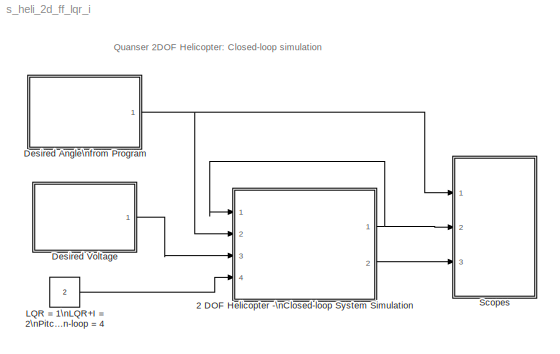
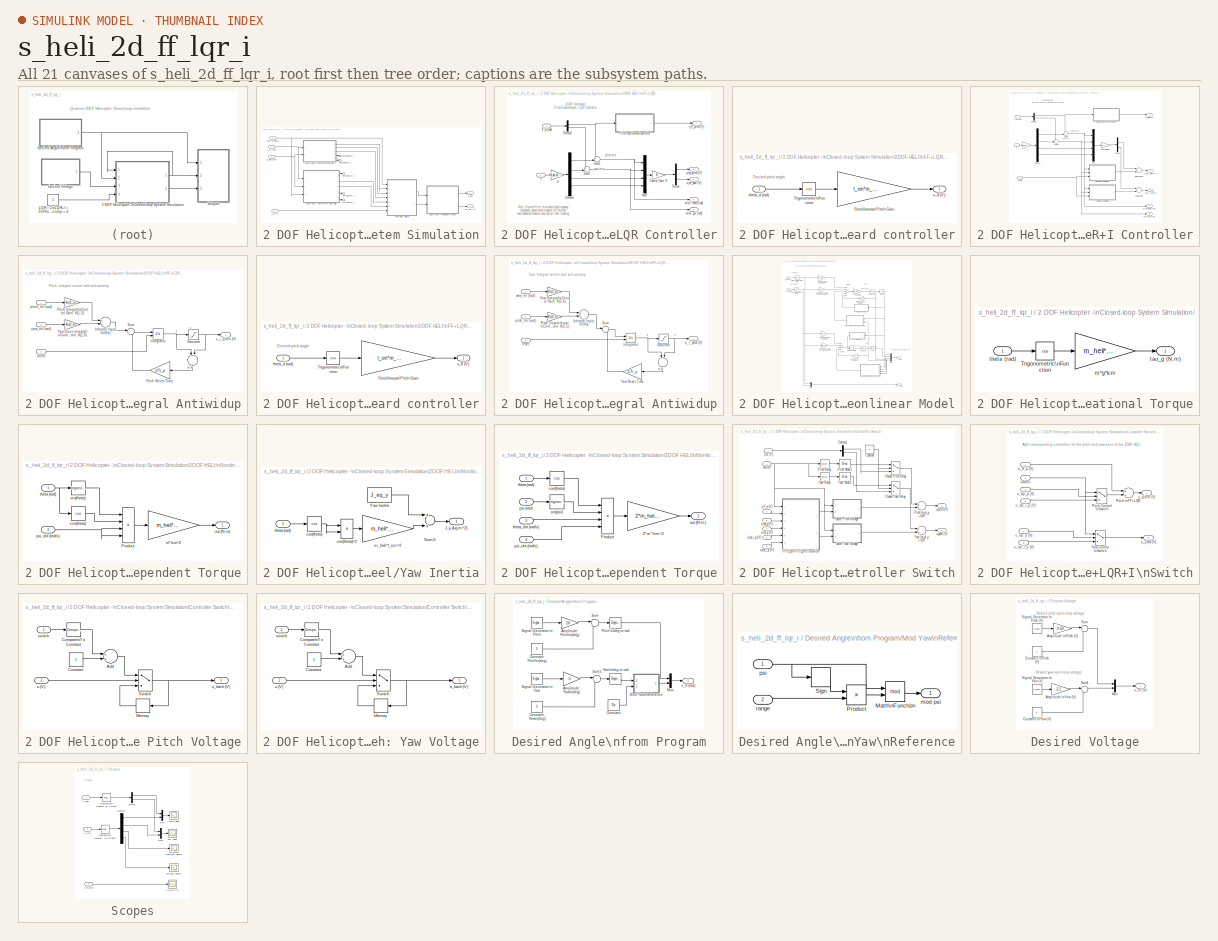
[diagram: thumbnail index - all 21 canvases of the model, root first then tree order]
MODEL s_heli_2d_ff_lqr_i
KIND model
BLOCK [SubSystem] 2 DOF Helicopter -\nClosed-loop System Simulation
  FunctionWithSeparateData = off
  MinAlgLoopOccurrences = off
  Ports = [4, 2]
  RTWSystemCode = Auto
BLOCK [SubSystem] 2 DOF Helicopter -\nClosed-loop System Simulation/2DOF HELI:\nFF+LQR Controller
  FunctionWithSeparateData = off
  MinAlgLoopOccurrences = off
  Ports = [2, 5]
  RTWSystemCode = Auto
BLOCK [Gain] 2 DOF Helicopter -\nClosed-loop System Simulation/2DOF HELI:\nFF+LQR Controller/-X
  Gain = -eye(4,4)
  Multiplication = Matrix(K*u)
  OutDataType = sfix(16)
  OutDataTypeMode = Inherit via internal rule
  OutScaling = 2^0
  ParameterDataType = sfix(16)
  ParameterDataTypeMode = Inherit via internal rule
  ParameterScaling = 2^0
  SaturateOnIntegerOverflow = off
BLOCK [Gain] 2 DOF Helicopter -\nClosed-loop System Simulation/2DOF HELI:\nFF+LQR Controller/Control Gain: K
  Gain = K
  Multiplication = Matrix(K*u)
  OutDataType = sfix(16)
  OutDataTypeMode = Inherit via internal rule
  OutScaling = 2^0
  ParameterDataType = sfix(16)
  ParameterDataTypeMode = Inherit via internal rule
  ParameterScaling = 2^0
  SaturateOnIntegerOverflow = off
BLOCK [Demux] 2 DOF Helicopter -\nClosed-loop System Simulation/2DOF HELI:\nFF+LQR Controller/Demux
  DisplayOption = bar
  Outputs = 2
  Ports = [1, 2]
BLOCK [Demux] 2 DOF Helicopter -\nClosed-loop System Simulation/2DOF HELI:\nFF+LQR Controller/Demux1
  DisplayOption = bar
  Ports = [1, 4]
BLOCK [Demux] 2 DOF Helicopter -\nClosed-loop System Simulation/2DOF HELI:\nFF+LQR Controller/Demux2
  DisplayOption = bar
  Outputs = 2
  Ports = [1, 2]
BLOCK [Mux] 2 DOF Helicopter -\nClosed-loop System Simulation/2DOF HELI:\nFF+LQR Controller/Mux
  DisplayOption = bar
  Ports = [4, 1]
BLOCK [SubSystem] 2 DOF Helicopter -\nClosed-loop System Simulation/2DOF HELI:\nFF+LQR Controller/Pitch feed-forward controller
  FunctionWithSeparateData = off
  MinAlgLoopOccurrences = off
  Ports = [1, 1]
  RTWSystemCode = Auto
BLOCK [Gain] 2 DOF Helicopter -\nClosed-loop System Simulation/2DOF HELI:\nFF+LQR Controller/Pitch feed-forward controller/Feed-forward Pitch Gain
  Gain = l_cm*m_heli*g / K_pp
  OutDataType = sfix(16)
  OutDataTypeMode = Inherit via internal rule
  OutScaling = 2^0
  ParameterDataType = sfix(16)
  ParameterDataTypeMode = Inherit via internal rule
  ParameterScaling = 2^0
  SaturateOnIntegerOverflow = off
BLOCK [Trigonometry] 2 DOF Helicopter -\nClosed-loop System Simulation/2DOF HELI:\nFF+LQR Controller/Pitch feed-forward controller/Trigonometric\nFunction
  Operator = cos
  OutputSignalType = real
  Ports = [1, 1]
BLOCK [Inport] 2 DOF Helicopter -\nClosed-loop System Simulation/2DOF HELI:\nFF+LQR Controller/Pitch feed-forward controller/theta_d (rad)
  IconDisplay = Port number
  OutDataType = sfix(16)
  OutScaling = 2^0
BLOCK [Outport] 2 DOF Helicopter -\nClosed-loop System Simulation/2DOF HELI:\nFF+LQR Controller/Pitch feed-forward controller/u_ff (V)
  IconDisplay = Port number
  OutDataType = sfix(16)
  OutScaling = 2^0
BLOCK [Sum] 2 DOF Helicopter -\nClosed-loop System Simulation/2DOF HELI:\nFF+LQR Controller/Sum1
  CollapseMode = All dimensions
  IconShape = round
  InputSameDT = off
  Inputs = ++|
  OutDataType = sfix(16)
  OutDataTypeMode = Inherit via internal rule
  OutScaling = 2^0
  Ports = [2, 1]
  SaturateOnIntegerOverflow = off
BLOCK [Sum] 2 DOF Helicopter -\nClosed-loop System Simulation/2DOF HELI:\nFF+LQR Controller/Sum2
  CollapseMode = All dimensions
  IconShape = round
  InputSameDT = off
  Inputs = ++|
  OutDataType = sfix(16)
  OutDataTypeMode = Inherit via internal rule
  OutScaling = 2^0
  Ports = [2, 1]
  SaturateOnIntegerOverflow = off
BLOCK [Inport] 2 DOF Helicopter -\nClosed-loop System Simulation/2DOF HELI:\nFF+LQR Controller/X
  IconDisplay = Port number
  OutDataType = sfix(16)
  OutScaling = 2^0
  Port = 2
BLOCK [Inport] 2 DOF Helicopter -\nClosed-loop System Simulation/2DOF HELI:\nFF+LQR Controller/X_d (rad)
  IconDisplay = Port number
  OutDataType = sfix(16)
  OutScaling = 2^0
BLOCK [Outport] 2 DOF Helicopter -\nClosed-loop System Simulation/2DOF HELI:\nFF+LQR Controller/error: psi (rad)
  IconDisplay = Port number
  OutDataType = sfix(16)
  OutScaling = 2^0
  Port = 5
BLOCK [Outport] 2 DOF Helicopter -\nClosed-loop System Simulation/2DOF HELI:\nFF+LQR Controller/error: theta (rad)
  IconDisplay = Port number
  OutDataType = sfix(16)
  OutScaling = 2^0
  Port = 4
BLOCK [Outport] 2 DOF Helicopter -\nClosed-loop System Simulation/2DOF HELI:\nFF+LQR Controller/u_ff_pitch (V)
  IconDisplay = Port number
  OutDataType = sfix(16)
  OutScaling = 2^0
BLOCK [Outport] 2 DOF Helicopter -\nClosed-loop System Simulation/2DOF HELI:\nFF+LQR Controller/u_lqr_pitch (V)
  IconDisplay = Port number
  OutDataType = sfix(16)
  OutScaling = 2^0
  Port = 2
BLOCK [Outport] 2 DOF Helicopter -\nClosed-loop System Simulation/2DOF HELI:\nFF+LQR Controller/u_lqr_yaw (V)
  IconDisplay = Port number
  OutDataType = sfix(16)
  OutScaling = 2^0
  Port = 3
BLOCK [SubSystem] 2 DOF Helicopter -\nClosed-loop System Simulation/2DOF HELI:\nFF+LQR+I Controller
  FunctionWithSeparateData = off
  MinAlgLoopOccurrences = off
  Ports = [3, 5]
  RTWSystemCode = Auto
BLOCK [Gain] 2 DOF Helicopter -\nClosed-loop System Simulation/2DOF HELI:\nFF+LQR+I Controller/-X
  Gain = -eye(4,4)
  Multiplication = Matrix(K*u)
  OutDataType = sfix(16)
  OutDataTypeMode = Inherit via internal rule
  OutScaling = 2^0
  ParameterDataType = sfix(16)
  ParameterDataTypeMode = Inherit via internal rule
  ParameterScaling = 2^0
  SaturateOnIntegerOverflow = off
BLOCK [Gain] 2 DOF Helicopter -\nClosed-loop System Simulation/2DOF HELI:\nFF+LQR+I Controller/Control Gain: K
  Gain = Ki(:,1:4)
  Multiplication = Matrix(K*u)
  OutDataType = sfix(16)
  OutDataTypeMode = Inherit via internal rule
  OutScaling = 2^0
  ParameterDataType = sfix(16)
  ParameterDataTypeMode = Inherit via internal rule
  ParameterScaling = 2^0
  SaturateOnIntegerOverflow = off
BLOCK [Demux] 2 DOF Helicopter -\nClosed-loop System Simulation/2DOF HELI:\nFF+LQR+I Controller/Demux
  DisplayOption = bar
  Outputs = 2
  Ports = [1, 2]
BLOCK [Demux] 2 DOF Helicopter -\nClosed-loop System Simulation/2DOF HELI:\nFF+LQR+I Controller/Demux1
  DisplayOption = bar
  Ports = [1, 4]
BLOCK [Demux] 2 DOF Helicopter -\nClosed-loop System Simulation/2DOF HELI:\nFF+LQR+I Controller/Demux2
  DisplayOption = bar
  Outputs = 2
  Ports = [1, 2]
BLOCK [Mux] 2 DOF Helicopter -\nClosed-loop System Simulation/2DOF HELI:\nFF+LQR+I Controller/Mux
  DisplayOption = bar
  Ports = [4, 1]
BLOCK [SubSystem] 2 DOF Helicopter -\nClosed-loop System Simulation/2DOF HELI:\nFF+LQR+I Controller/Pitch Integral Antiwidup
  FunctionWithSeparateData = off
  MinAlgLoopOccurrences = off
  Ports = [3, 1]
  RTWSystemCode = Auto
BLOCK [Sum] 2 DOF Helicopter -\nClosed-loop System Simulation/2DOF HELI:\nFF+LQR+I Controller/Pitch Integral Antiwidup/Integral Input \n(V//s)
  CollapseMode = All dimensions
  InputSameDT = off
  OutDataType = sfix(16)
  OutDataTypeMode = Inherit via internal rule
  OutScaling = 2^-10
  Ports = [2, 1]
  SaturateOnIntegerOverflow = off
BLOCK [Integrator] 2 DOF Helicopter -\nClosed-loop System Simulation/2DOF HELI:\nFF+LQR+I Controller/Pitch Integral Antiwidup/Integrator
  ExternalReset = rising
  Ports = [2, 1]
BLOCK [Gain] 2 DOF Helicopter -\nClosed-loop System Simulation/2DOF HELI:\nFF+LQR+I Controller/Pitch Integral Antiwidup/Pitch Integral\nControl Gain: K(1,5)
  Gain = Ki(1,5)
  Multiplication = Matrix(K*u)
  OutDataType = sfix(16)
  OutDataTypeMode = Inherit via internal rule
  OutScaling = 2^0
  ParameterDataType = sfix(16)
  ParameterDataTypeMode = Inherit via internal rule
  ParameterScaling = 2^0
  SaturateOnIntegerOverflow = off
BLOCK [Gain] 2 DOF Helicopter -\nClosed-loop System Simulation/2DOF HELI:\nFF+LQR+I Controller/Pitch Integral Antiwidup/Pitch Reset Time
  Gain = 1/Tr_p
  OutDataType = sfix(16)
  OutDataTypeMode = Inherit via internal rule
  OutScaling = 2^0
  ParameterDataType = sfix(16)
  ParameterDataTypeMode = Inherit via internal rule
  ParameterScaling = 2^0
  SaturateOnIntegerOverflow = off
BLOCK [Saturate] 2 DOF Helicopter -\nClosed-loop System Simulation/2DOF HELI:\nFF+LQR+I Controller/Pitch Integral Antiwidup/Saturate
  LowerLimit = -SAT_INT_ERR_PITCH
  UpperLimit = SAT_INT_ERR_PITCH
BLOCK [Sum] 2 DOF Helicopter -\nClosed-loop System Simulation/2DOF HELI:\nFF+LQR+I Controller/Pitch Integral Antiwidup/Sum
  CollapseMode = All dimensions
  IconShape = round
  InputSameDT = off
  Inputs = |++
  OutDataType = sfix(16)
  OutDataTypeMode = Inherit via internal rule
  OutScaling = 2^0
  Ports = [2, 1]
  SaturateOnIntegerOverflow = off
BLOCK [Gain] 2 DOF Helicopter -\nClosed-loop System Simulation/2DOF HELI:\nFF+LQR+I Controller/Pitch Integral Antiwidup/Yaw Cross-Integral\nControl Gain: K(1,6)
  Gain = Ki(1,6)
  Multiplication = Matrix(K*u)
  OutDataType = sfix(16)
  OutDataTypeMode = Inherit via internal rule
  OutScaling = 2^0
  ParameterDataType = sfix(16)
  ParameterDataTypeMode = Inherit via internal rule
  ParameterScaling = 2^0
  SaturateOnIntegerOverflow = off
BLOCK [Inport] 2 DOF Helicopter -\nClosed-loop System Simulation/2DOF HELI:\nFF+LQR+I Controller/Pitch Integral Antiwidup/pitch_err (rad)
  IconDisplay = Port number
  OutDataType = sfix(16)
  OutScaling = 2^0
BLOCK [Inport] 2 DOF Helicopter -\nClosed-loop System Simulation/2DOF HELI:\nFF+LQR+I Controller/Pitch Integral Antiwidup/reset
  IconDisplay = Port number
  OutDataType = sfix(16)
  OutScaling = 2^0
  Port = 3
BLOCK [Sum] 2 DOF Helicopter -\nClosed-loop System Simulation/2DOF HELI:\nFF+LQR+I Controller/Pitch Integral Antiwidup/u-v
  CollapseMode = All dimensions
  InputSameDT = off
  Inputs = -+
  OutDataType = sfix(16)
  OutDataTypeMode = Inherit via internal rule
  OutScaling = 2^-10
  Ports = [2, 1]
  SaturateOnIntegerOverflow = off
BLOCK [Outport] 2 DOF Helicopter -\nClosed-loop System Simulation/2DOF HELI:\nFF+LQR+I Controller/Pitch Integral Antiwidup/u_i_pitch (V)
  IconDisplay = Port number
  OutDataType = sfix(16)
  OutScaling = 2^0
BLOCK [Inport] 2 DOF Helicopter -\nClosed-loop System Simulation/2DOF HELI:\nFF+LQR+I Controller/Pitch Integral Antiwidup/yaw_err (rad)
  IconDisplay = Port number
  OutDataType = sfix(16)
  OutScaling = 2^0
  Port = 2
BLOCK [SubSystem] 2 DOF Helicopter -\nClosed-loop System Simulation/2DOF HELI:\nFF+LQR+I Controller/Pitch feed-forward controller
  FunctionWithSeparateData = off
  MinAlgLoopOccurrences = off
  Ports = [1, 1]
  RTWSystemCode = Auto
BLOCK [Gain] 2 DOF Helicopter -\nClosed-loop System Simulation/2DOF HELI:\nFF+LQR+I Controller/Pitch feed-forward controller/Feed-forward Pitch Gain
  Gain = l_cm*m_heli*g / K_pp
  OutDataType = sfix(16)
  OutDataTypeMode = Inherit via internal rule
  OutScaling = 2^0
  ParameterDataType = sfix(16)
  ParameterDataTypeMode = Inherit via internal rule
  ParameterScaling = 2^0
  SaturateOnIntegerOverflow = off
BLOCK [Trigonometry] 2 DOF Helicopter -\nClosed-loop System Simulation/2DOF HELI:\nFF+LQR+I Controller/Pitch feed-forward controller/Trigonometric\nFunction
  Operator = cos
  OutputSignalType = real
  Ports = [1, 1]
BLOCK [Inport] 2 DOF Helicopter -\nClosed-loop System Simulation/2DOF HELI:\nFF+LQR+I Controller/Pitch feed-forward controller/theta_d (rad)
  IconDisplay = Port number
  OutDataType = sfix(16)
  OutScaling = 2^0
BLOCK [Outport] 2 DOF Helicopter -\nClosed-loop System Simulation/2DOF HELI:\nFF+LQR+I Controller/Pitch feed-forward controller/u_ff (V)
  IconDisplay = Port number
  OutDataType = sfix(16)
  OutScaling = 2^0
BLOCK [Sum] 2 DOF Helicopter -\nClosed-loop System Simulation/2DOF HELI:\nFF+LQR+I Controller/Pitch:\nLQR+I
  CollapseMode = All dimensions
  InputSameDT = off
  OutDataType = sfix(16)
  OutDataTypeMode = Inherit via internal rule
  OutScaling = 2^-10
  Ports = [2, 1]
  SaturateOnIntegerOverflow = off
BLOCK [Sum] 2 DOF Helicopter -\nClosed-loop System Simulation/2DOF HELI:\nFF+LQR+I Controller/Sum1
  CollapseMode = All dimensions
  IconShape = round
  InputSameDT = off
  Inputs = ++|
  OutDataType = sfix(16)
  OutDataTypeMode = Inherit via internal rule
  OutScaling = 2^0
  Ports = [2, 1]
  SaturateOnIntegerOverflow = off
BLOCK [Sum] 2 DOF Helicopter -\nClosed-loop System Simulation/2DOF HELI:\nFF+LQR+I Controller/Sum2
  CollapseMode = All dimensions
  IconShape = round
  InputSameDT = off
  Inputs = ++|
  OutDataType = sfix(16)
  OutDataTypeMode = Inherit via internal rule
  OutScaling = 2^0
  Ports = [2, 1]
  SaturateOnIntegerOverflow = off
BLOCK [Inport] 2 DOF Helicopter -\nClosed-loop System Simulation/2DOF HELI:\nFF+LQR+I Controller/X
  IconDisplay = Port number
  OutDataType = sfix(16)
  OutScaling = 2^0
  Port = 2
BLOCK [Inport] 2 DOF Helicopter -\nClosed-loop System Simulation/2DOF HELI:\nFF+LQR+I Controller/X_d (rad)
  IconDisplay = Port number
  OutDataType = sfix(16)
  OutScaling = 2^0
BLOCK [SubSystem] 2 DOF Helicopter -\nClosed-loop System Simulation/2DOF HELI:\nFF+LQR+I Controller/Yaw Integral Antiwidup
  FunctionWithSeparateData = off
  MinAlgLoopOccurrences = off
  Ports = [3, 1]
  RTWSystemCode = Auto
BLOCK [Sum] 2 DOF Helicopter -\nClosed-loop System Simulation/2DOF HELI:\nFF+LQR+I Controller/Yaw Integral Antiwidup/Integral Input \n(V//s)
  CollapseMode = All dimensions
  InputSameDT = off
  OutDataType = sfix(16)
  OutDataTypeMode = Inherit via internal rule
  OutScaling = 2^-10
  Ports = [2, 1]
  SaturateOnIntegerOverflow = off
BLOCK [Integrator] 2 DOF Helicopter -\nClosed-loop System Simulation/2DOF HELI:\nFF+LQR+I Controller/Yaw Integral Antiwidup/Integrator
  ExternalReset = rising
  Ports = [2, 1]
BLOCK [Gain] 2 DOF Helicopter -\nClosed-loop System Simulation/2DOF HELI:\nFF+LQR+I Controller/Yaw Integral Antiwidup/Pitch Cross-Integral\nControl Gain: K(2,5)
  Gain = Ki(2,5)
  Multiplication = Matrix(K*u)
  OutDataType = sfix(16)
  OutDataTypeMode = Inherit via internal rule
  OutScaling = 2^0
  ParameterDataType = sfix(16)
  ParameterDataTypeMode = Inherit via internal rule
  ParameterScaling = 2^0
  SaturateOnIntegerOverflow = off
BLOCK [Saturate] 2 DOF Helicopter -\nClosed-loop System Simulation/2DOF HELI:\nFF+LQR+I Controller/Yaw Integral Antiwidup/Saturate
  LowerLimit = -SAT_INT_ERR_YAW
  UpperLimit = SAT_INT_ERR_YAW
BLOCK [Sum] 2 DOF Helicopter -\nClosed-loop System Simulation/2DOF HELI:\nFF+LQR+I Controller/Yaw Integral Antiwidup/Sum
  CollapseMode = All dimensions
  IconShape = round
  InputSameDT = off
  Inputs = |++
  OutDataType = sfix(16)
  OutDataTypeMode = Inherit via internal rule
  OutScaling = 2^0
  Ports = [2, 1]
  SaturateOnIntegerOverflow = off
BLOCK [Gain] 2 DOF Helicopter -\nClosed-loop System Simulation/2DOF HELI:\nFF+LQR+I Controller/Yaw Integral Antiwidup/Yaw Integral\nControl Gain: K(2,6)
  Gain = Ki(2,6)
  Multiplication = Matrix(K*u)
  OutDataType = sfix(16)
  OutDataTypeMode = Inherit via internal rule
  OutScaling = 2^0
  ParameterDataType = sfix(16)
  ParameterDataTypeMode = Inherit via internal rule
  ParameterScaling = 2^0
  SaturateOnIntegerOverflow = off
BLOCK [Gain] 2 DOF Helicopter -\nClosed-loop System Simulation/2DOF HELI:\nFF+LQR+I Controller/Yaw Integral Antiwidup/Yaw Reset Time
  Gain = 1/Tr_y
  OutDataType = sfix(16)
  OutDataTypeMode = Inherit via internal rule
  OutScaling = 2^0
  ParameterDataType = sfix(16)
  ParameterDataTypeMode = Inherit via internal rule
  ParameterScaling = 2^0
  SaturateOnIntegerOverflow = off
BLOCK [Inport] 2 DOF Helicopter -\nClosed-loop System Simulation/2DOF HELI:\nFF+LQR+I Controller/Yaw Integral Antiwidup/pitch_err (rad)
  IconDisplay = Port number
  OutDataType = sfix(16)
  OutScaling = 2^0
BLOCK [Inport] 2 DOF Helicopter -\nClosed-loop System Simulation/2DOF HELI:\nFF+LQR+I Controller/Yaw Integral Antiwidup/reset
  IconDisplay = Port number
  OutDataType = sfix(16)
  OutScaling = 2^0
  Port = 3
BLOCK [Sum] 2 DOF Helicopter -\nClosed-loop System Simulation/2DOF HELI:\nFF+LQR+I Controller/Yaw Integral Antiwidup/u-v
  CollapseMode = All dimensions
  InputSameDT = off
  Inputs = -+
  OutDataType = sfix(16)
  OutDataTypeMode = Inherit via internal rule
  OutScaling = 2^-10
  Ports = [2, 1]
  SaturateOnIntegerOverflow = off
BLOCK [Outport] 2 DOF Helicopter -\nClosed-loop System Simulation/2DOF HELI:\nFF+LQR+I Controller/Yaw Integral Antiwidup/u_i_yaw (V)
  IconDisplay = Port number
  OutDataType = sfix(16)
  OutScaling = 2^0
BLOCK [Inport] 2 DOF Helicopter -\nClosed-loop System Simulation/2DOF HELI:\nFF+LQR+I Controller/Yaw Integral Antiwidup/yaw_err (rad)
  IconDisplay = Port number
  OutDataType = sfix(16)
  OutScaling = 2^0
  Port = 2
BLOCK [Sum] 2 DOF Helicopter -\nClosed-loop System Simulation/2DOF HELI:\nFF+LQR+I Controller/Yaw:\nLQR+I
  CollapseMode = All dimensions
  InputSameDT = off
  OutDataType = sfix(16)
  OutDataTypeMode = Inherit via internal rule
  OutScaling = 2^-10
  Ports = [2, 1]
  SaturateOnIntegerOverflow = off
BLOCK [Outport] 2 DOF Helicopter -\nClosed-loop System Simulation/2DOF HELI:\nFF+LQR+I Controller/error: psi (rad)
  IconDisplay = Port number
  OutDataType = sfix(16)
  OutScaling = 2^0
  Port = 5
BLOCK [Outport] 2 DOF Helicopter -\nClosed-loop System Simulation/2DOF HELI:\nFF+LQR+I Controller/error: theta (rad)
  IconDisplay = Port number
  OutDataType = sfix(16)
  OutScaling = 2^0
  Port = 4
BLOCK [Inport] 2 DOF Helicopter -\nClosed-loop System Simulation/2DOF HELI:\nFF+LQR+I Controller/reset int
  IconDisplay = Port number
  OutDataType = sfix(16)
  OutScaling = 2^0
  Port = 3
BLOCK [Outport] 2 DOF Helicopter -\nClosed-loop System Simulation/2DOF HELI:\nFF+LQR+I Controller/u_ff_pitch (V)
  IconDisplay = Port number
  OutDataType = sfix(16)
  OutScaling = 2^0
BLOCK [Outport] 2 DOF Helicopter -\nClosed-loop System Simulation/2DOF HELI:\nFF+LQR+I Controller/u_lqr_i_pitch (V)
  IconDisplay = Port number
  OutDataType = sfix(16)
  OutScaling = 2^0
  Port = 2
BLOCK [Outport] 2 DOF Helicopter -\nClosed-loop System Simulation/2DOF HELI:\nFF+LQR+I Controller/u_lqr_i_yaw (V)
  IconDisplay = Port number
  OutDataType = sfix(16)
  OutScaling = 2^0
  Port = 3
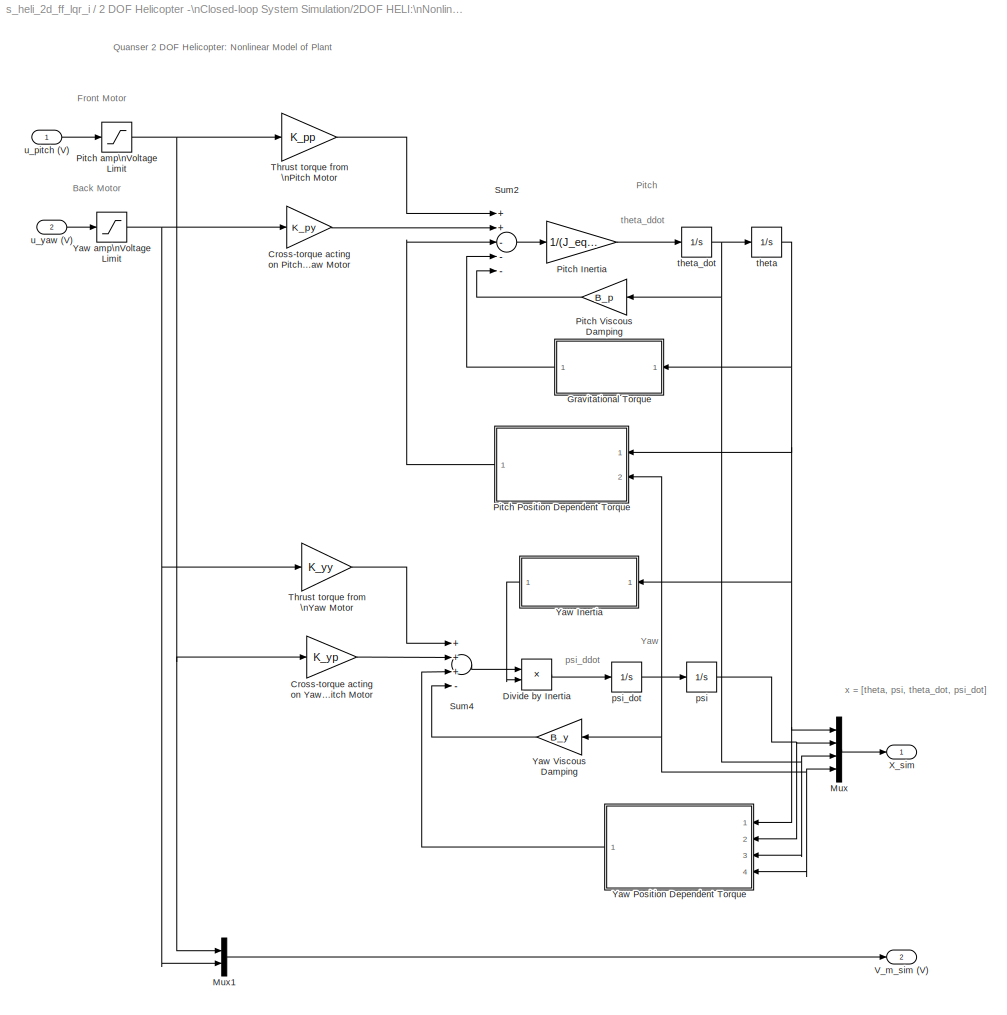
BLOCK [SubSystem] 2 DOF Helicopter -\nClosed-loop System Simulation/2DOF HELI:\nNonlinear Model
  FunctionWithSeparateData = off
  MinAlgLoopOccurrences = off
  Ports = [2, 2]
  RTWSystemCode = Auto
BLOCK [Gain] 2 DOF Helicopter -\nClosed-loop System Simulation/2DOF HELI:\nNonlinear Model/Cross-torque acting on Pitch \nfrom Yaw Motor
  Gain = K_py
  OutDataType = sfix(16)
  OutDataTypeMode = Inherit via internal rule
  OutScaling = 2^0
  ParameterDataType = sfix(16)
  ParameterDataTypeMode = Inherit via internal rule
  ParameterScaling = 2^0
  SaturateOnIntegerOverflow = off
BLOCK [Gain] 2 DOF Helicopter -\nClosed-loop System Simulation/2DOF HELI:\nNonlinear Model/Cross-torque acting on Yaw \nfrom Pitch Motor
  Gain = K_yp
  OutDataType = sfix(16)
  OutDataTypeMode = Inherit via internal rule
  OutScaling = 2^0
  ParameterDataType = sfix(16)
  ParameterDataTypeMode = Inherit via internal rule
  ParameterScaling = 2^0
  SaturateOnIntegerOverflow = off
BLOCK [Product] 2 DOF Helicopter -\nClosed-loop System Simulation/2DOF HELI:\nNonlinear Model/Divide by Inertia
  CollapseMode = All dimensions
  InputSameDT = off
  Inputs = */
  OutDataType = sfix(16)
  OutDataTypeMode = Inherit via internal rule
  OutScaling = 2^-10
  Ports = [2, 1]
  RndMeth = Floor
  SaturateOnIntegerOverflow = off
BLOCK [SubSystem] 2 DOF Helicopter -\nClosed-loop System Simulation/2DOF HELI:\nNonlinear Model/Gravitational Torque
  FunctionWithSeparateData = off
  MinAlgLoopOccurrences = off
  Ports = [1, 1]
  RTWSystemCode = Auto
BLOCK [Trigonometry] 2 DOF Helicopter -\nClosed-loop System Simulation/2DOF HELI:\nNonlinear Model/Gravitational Torque/Trigonometric\nFunction
  Operator = cos
  OutputSignalType = real
  Ports = [1, 1]
BLOCK [Gain] 2 DOF Helicopter -\nClosed-loop System Simulation/2DOF HELI:\nNonlinear Model/Gravitational Torque/m*g*lcm
  Gain = m_heli*g*l_cm
  OutDataType = sfix(16)
  OutDataTypeMode = Inherit via internal rule
  OutScaling = 2^0
  ParameterDataType = sfix(16)
  ParameterDataTypeMode = Inherit via internal rule
  ParameterScaling = 2^0
  SaturateOnIntegerOverflow = off
BLOCK [Outport] 2 DOF Helicopter -\nClosed-loop System Simulation/2DOF HELI:\nNonlinear Model/Gravitational Torque/tau_g (N.m)
  IconDisplay = Port number
  OutDataType = sfix(16)
  OutScaling = 2^0
BLOCK [Inport] 2 DOF Helicopter -\nClosed-loop System Simulation/2DOF HELI:\nNonlinear Model/Gravitational Torque/theta (rad)
  IconDisplay = Port number
  OutDataType = sfix(16)
  OutScaling = 2^0
BLOCK [Mux] 2 DOF Helicopter -\nClosed-loop System Simulation/2DOF HELI:\nNonlinear Model/Mux
  DisplayOption = bar
  Ports = [4, 1]
BLOCK [Mux] 2 DOF Helicopter -\nClosed-loop System Simulation/2DOF HELI:\nNonlinear Model/Mux1
  DisplayOption = bar
  Inputs = 2
  Ports = [2, 1]
BLOCK [Gain] 2 DOF Helicopter -\nClosed-loop System Simulation/2DOF HELI:\nNonlinear Model/Pitch Inertia
  Gain = 1/(J_eq_p+m_heli*l_cm^2)
  OutDataType = sfix(16)
  OutDataTypeMode = Inherit via internal rule
  OutScaling = 2^0
  ParameterDataType = sfix(16)
  ParameterDataTypeMode = Inherit via internal rule
  ParameterScaling = 2^0
  SaturateOnIntegerOverflow = off
BLOCK [SubSystem] 2 DOF Helicopter -\nClosed-loop System Simulation/2DOF HELI:\nNonlinear Model/Pitch Position Dependent Torque
  FunctionWithSeparateData = off
  MinAlgLoopOccurrences = off
  Ports = [2, 1]
  RTWSystemCode = Auto
BLOCK [Product] 2 DOF Helicopter -\nClosed-loop System Simulation/2DOF HELI:\nNonlinear Model/Pitch Position Dependent Torque/Product
  CollapseMode = All dimensions
  InputSameDT = off
  Inputs = 4
  OutDataType = sfix(16)
  OutDataTypeMode = Inherit via internal rule
  OutScaling = 2^0
  Ports = [4, 1]
  SaturateOnIntegerOverflow = off
BLOCK [Trigonometry] 2 DOF Helicopter -\nClosed-loop System Simulation/2DOF HELI:\nNonlinear Model/Pitch Position Dependent Torque/cos(theta)
  Operator = cos
  OutputSignalType = real
  Ports = [1, 1]
BLOCK [Gain] 2 DOF Helicopter -\nClosed-loop System Simulation/2DOF HELI:\nNonlinear Model/Pitch Position Dependent Torque/m*lcm^2
  Gain = m_heli*l_cm^2
  OutDataType = sfix(16)
  OutDataTypeMode = Inherit via internal rule
  OutScaling = 2^0
  ParameterDataType = sfix(16)
  ParameterDataTypeMode = Inherit via internal rule
  ParameterScaling = 2^0
  SaturateOnIntegerOverflow = off
BLOCK [Outport] 2 DOF Helicopter -\nClosed-loop System Simulation/2DOF HELI:\nNonlinear Model/Pitch Position Dependent Torque/out (N.m)
  IconDisplay = Port number
  OutDataType = sfix(16)
  OutScaling = 2^0
BLOCK [Inport] 2 DOF Helicopter -\nClosed-loop System Simulation/2DOF HELI:\nNonlinear Model/Pitch Position Dependent Torque/psi_dot (rad//s)
  IconDisplay = Port number
  OutDataType = sfix(16)
  OutScaling = 2^0
  Port = 2
BLOCK [Trigonometry] 2 DOF Helicopter -\nClosed-loop System Simulation/2DOF HELI:\nNonlinear Model/Pitch Position Dependent Torque/sin(theta)
  OutputSignalType = real
  Ports = [1, 1]
BLOCK [Inport] 2 DOF Helicopter -\nClosed-loop System Simulation/2DOF HELI:\nNonlinear Model/Pitch Position Dependent Torque/theta (rad)
  IconDisplay = Port number
  OutDataType = sfix(16)
  OutScaling = 2^0
BLOCK [Gain] 2 DOF Helicopter -\nClosed-loop System Simulation/2DOF HELI:\nNonlinear Model/Pitch Viscous Damping
  Gain = B_p
  OutDataType = sfix(16)
  OutDataTypeMode = Inherit via internal rule
  OutScaling = 2^0
  ParameterDataType = sfix(16)
  ParameterDataTypeMode = Inherit via internal rule
  ParameterScaling = 2^0
  SaturateOnIntegerOverflow = off
BLOCK [Saturate] 2 DOF Helicopter -\nClosed-loop System Simulation/2DOF HELI:\nNonlinear Model/Pitch amp\nVoltage Limit
  LowerLimit = - VMAX_AMP_P
  UpperLimit = VMAX_AMP_P
BLOCK [Sum] 2 DOF Helicopter -\nClosed-loop System Simulation/2DOF HELI:\nNonlinear Model/Sum2
  CollapseMode = All dimensions
  InputSameDT = off
  Inputs = ++---
  OutDataType = sfix(16)
  OutDataTypeMode = Inherit via internal rule
  OutScaling = 2^0
  Ports = [5, 1]
  SaturateOnIntegerOverflow = off
BLOCK [Sum] 2 DOF Helicopter -\nClosed-loop System Simulation/2DOF HELI:\nNonlinear Model/Sum4
  CollapseMode = All dimensions
  InputSameDT = off
  Inputs = +++-
  OutDataType = sfix(16)
  OutDataTypeMode = Inherit via internal rule
  OutScaling = 2^0
  Ports = [4, 1]
  SaturateOnIntegerOverflow = off
BLOCK [Gain] 2 DOF Helicopter -\nClosed-loop System Simulation/2DOF HELI:\nNonlinear Model/Thrust torque from \nPitch Motor
  Gain = K_pp
  OutDataType = sfix(16)
  OutDataTypeMode = Inherit via internal rule
  OutScaling = 2^0
  ParameterDataType = sfix(16)
  ParameterDataTypeMode = Inherit via internal rule
  ParameterScaling = 2^0
  SaturateOnIntegerOverflow = off
BLOCK [Gain] 2 DOF Helicopter -\nClosed-loop System Simulation/2DOF HELI:\nNonlinear Model/Thrust torque from \nYaw Motor
  Gain = K_yy
  OutDataType = sfix(16)
  OutDataTypeMode = Inherit via internal rule
  OutScaling = 2^0
  ParameterDataType = sfix(16)
  ParameterDataTypeMode = Inherit via internal rule
  ParameterScaling = 2^0
  SaturateOnIntegerOverflow = off
BLOCK [Outport] 2 DOF Helicopter -\nClosed-loop System Simulation/2DOF HELI:\nNonlinear Model/V_m_sim (V)
  IconDisplay = Port number
  OutDataType = sfix(16)
  OutScaling = 2^0
  Port = 2
BLOCK [Outport] 2 DOF Helicopter -\nClosed-loop System Simulation/2DOF HELI:\nNonlinear Model/X_sim
  IconDisplay = Port number
  OutDataType = sfix(16)
  OutScaling = 2^0
BLOCK [SubSystem] 2 DOF Helicopter -\nClosed-loop System Simulation/2DOF HELI:\nNonlinear Model/Yaw Inertia
  FunctionWithSeparateData = off
  MinAlgLoopOccurrences = off
  Ports = [1, 1]
  RTWSystemCode = Auto
BLOCK [Outport] 2 DOF Helicopter -\nClosed-loop System Simulation/2DOF HELI:\nNonlinear Model/Yaw Inertia/J_y (kg.m^2)
  IconDisplay = Port number
  OutDataType = sfix(16)
  OutScaling = 2^0
BLOCK [Sum] 2 DOF Helicopter -\nClosed-loop System Simulation/2DOF HELI:\nNonlinear Model/Yaw Inertia/Sum3
  CollapseMode = All dimensions
  InputSameDT = off
  OutDataType = sfix(16)
  OutDataTypeMode = Inherit via internal rule
  OutScaling = 2^0
  Ports = [2, 1]
  SaturateOnIntegerOverflow = off
BLOCK [Constant] 2 DOF Helicopter -\nClosed-loop System Simulation/2DOF HELI:\nNonlinear Model/Yaw Inertia/Yaw Inertia
  OutDataType = sfix(16)
  OutScaling = 2^0
  Value = J_eq_y
BLOCK [Trigonometry] 2 DOF Helicopter -\nClosed-loop System Simulation/2DOF HELI:\nNonlinear Model/Yaw Inertia/cos(theta)
  Operator = cos
  OutputSignalType = real
  Ports = [1, 1]
BLOCK [Product] 2 DOF Helicopter -\nClosed-loop System Simulation/2DOF HELI:\nNonlinear Model/Yaw Inertia/cos(theta)^2
  CollapseMode = All dimensions
  InputSameDT = off
  OutDataType = sfix(16)
  OutDataTypeMode = Inherit via internal rule
  OutScaling = 2^0
  Ports = [2, 1]
  SaturateOnIntegerOverflow = off
BLOCK [Gain] 2 DOF Helicopter -\nClosed-loop System Simulation/2DOF HELI:\nNonlinear Model/Yaw Inertia/m_heli*l_cm^2
  Gain = m_heli*l_cm^2
  OutDataType = sfix(16)
  OutDataTypeMode = Inherit via internal rule
  OutScaling = 2^0
  ParameterDataType = sfix(16)
  ParameterDataTypeMode = Inherit via internal rule
  ParameterScaling = 2^0
  SaturateOnIntegerOverflow = off
BLOCK [Inport] 2 DOF Helicopter -\nClosed-loop System Simulation/2DOF HELI:\nNonlinear Model/Yaw Inertia/theta (rad)
  IconDisplay = Port number
  OutDataType = sfix(16)
  OutScaling = 2^0
BLOCK [SubSystem] 2 DOF Helicopter -\nClosed-loop System Simulation/2DOF HELI:\nNonlinear Model/Yaw Position Dependent Torque
  FunctionWithSeparateData = off
  MinAlgLoopOccurrences = off
  Ports = [4, 1]
  RTWSystemCode = Auto
BLOCK [Gain] 2 DOF Helicopter -\nClosed-loop System Simulation/2DOF HELI:\nNonlinear Model/Yaw Position Dependent Torque/2*m*lcm^2
  Gain = 2*m_heli*l_cm^2
  OutDataType = sfix(16)
  OutDataTypeMode = Inherit via internal rule
  OutScaling = 2^0
  ParameterDataType = sfix(16)
  ParameterDataTypeMode = Inherit via internal rule
  ParameterScaling = 2^0
  SaturateOnIntegerOverflow = off
BLOCK [Product] 2 DOF Helicopter -\nClosed-loop System Simulation/2DOF HELI:\nNonlinear Model/Yaw Position Dependent Torque/Product
  CollapseMode = All dimensions
  InputSameDT = off
  Inputs = 4
  OutDataType = sfix(16)
  OutDataTypeMode = Inherit via internal rule
  OutScaling = 2^0
  Ports = [4, 1]
  SaturateOnIntegerOverflow = off
BLOCK [Trigonometry] 2 DOF Helicopter -\nClosed-loop System Simulation/2DOF HELI:\nNonlinear Model/Yaw Position Dependent Torque/cos(theta)
  Operator = cos
  OutputSignalType = real
  Ports = [1, 1]
BLOCK [Outport] 2 DOF Helicopter -\nClosed-loop System Simulation/2DOF HELI:\nNonlinear Model/Yaw Position Dependent Torque/out (N.m)
  IconDisplay = Port number
  OutDataType = sfix(16)
  OutScaling = 2^0
BLOCK [Inport] 2 DOF Helicopter -\nClosed-loop System Simulation/2DOF HELI:\nNonlinear Model/Yaw Position Dependent Torque/psi (rad)
  IconDisplay = Port number
  OutDataType = sfix(16)
  OutScaling = 2^0
  Port = 2
BLOCK [Inport] 2 DOF Helicopter -\nClosed-loop System Simulation/2DOF HELI:\nNonlinear Model/Yaw Position Dependent Torque/psi_dot (rad//s)
  IconDisplay = Port number
  OutDataType = sfix(16)
  OutScaling = 2^0
  Port = 4
BLOCK [Trigonometry] 2 DOF Helicopter -\nClosed-loop System Simulation/2DOF HELI:\nNonlinear Model/Yaw Position Dependent Torque/sin(psi)
  OutputSignalType = real
  Ports = [1, 1]
BLOCK [Inport] 2 DOF Helicopter -\nClosed-loop System Simulation/2DOF HELI:\nNonlinear Model/Yaw Position Dependent Torque/theta (rad)
  IconDisplay = Port number
  OutDataType = sfix(16)
  OutScaling = 2^0
BLOCK [Inport] 2 DOF Helicopter -\nClosed-loop System Simulation/2DOF HELI:\nNonlinear Model/Yaw Position Dependent Torque/theta_dot (rad//s)
  IconDisplay = Port number
  OutDataType = sfix(16)
  OutScaling = 2^0
  Port = 3
BLOCK [Gain] 2 DOF Helicopter -\nClosed-loop System Simulation/2DOF HELI:\nNonlinear Model/Yaw Viscous Damping
  Gain = B_y
  OutDataType = sfix(16)
  OutDataTypeMode = Inherit via internal rule
  OutScaling = 2^0
  ParameterDataType = sfix(16)
  ParameterDataTypeMode = Inherit via internal rule
  ParameterScaling = 2^0
  SaturateOnIntegerOverflow = off
BLOCK [Saturate] 2 DOF Helicopter -\nClosed-loop System Simulation/2DOF HELI:\nNonlinear Model/Yaw amp\nVoltage Limit
  LowerLimit = - VMAX_AMP_Y
  UpperLimit = VMAX_AMP_Y
BLOCK [Integrator] 2 DOF Helicopter -\nClosed-loop System Simulation/2DOF HELI:\nNonlinear Model/psi
  Ports = [1, 1]
BLOCK [Integrator] 2 DOF Helicopter -\nClosed-loop System Simulation/2DOF HELI:\nNonlinear Model/psi_dot
  Ports = [1, 1]
BLOCK [Integrator] 2 DOF Helicopter -\nClosed-loop System Simulation/2DOF HELI:\nNonlinear Model/theta
  InitialCondition = theta_0
  LimitOutput = on
  LowerSaturationLimit = -40.5*pi/180
  Ports = [1, 1]
  UpperSaturationLimit = 40.5*pi/180
BLOCK [Integrator] 2 DOF Helicopter -\nClosed-loop System Simulation/2DOF HELI:\nNonlinear Model/theta_dot
  Ports = [1, 1]
BLOCK [Inport] 2 DOF Helicopter -\nClosed-loop System Simulation/2DOF HELI:\nNonlinear Model/u_pitch (V)
  IconDisplay = Port number
  OutDataType = sfix(16)
  OutScaling = 2^0
BLOCK [Inport] 2 DOF Helicopter -\nClosed-loop System Simulation/2DOF HELI:\nNonlinear Model/u_yaw (V)
  IconDisplay = Port number
  OutDataType = sfix(16)
  OutScaling = 2^0
  Port = 2
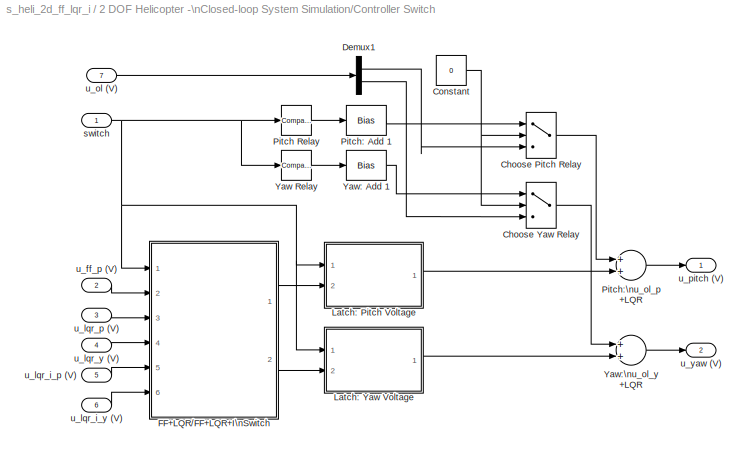
BLOCK [SubSystem] 2 DOF Helicopter -\nClosed-loop System Simulation/Controller Switch
  FunctionWithSeparateData = off
  MinAlgLoopOccurrences = off
  Ports = [7, 2]
  RTWSystemCode = Auto
BLOCK [MultiPortSwitch] 2 DOF Helicopter -\nClosed-loop System Simulation/Controller Switch/Choose Pitch Relay
  InputSameDT = off
  Inputs = 2
  Ports = [3, 1]
  SaturateOnIntegerOverflow = off
BLOCK [MultiPortSwitch] 2 DOF Helicopter -\nClosed-loop System Simulation/Controller Switch/Choose Yaw Relay
  InputSameDT = off
  Inputs = 2
  Ports = [3, 1]
  SaturateOnIntegerOverflow = off
BLOCK [Constant] 2 DOF Helicopter -\nClosed-loop System Simulation/Controller Switch/Constant
  OutDataType = sfix(16)
  OutScaling = 2^0
  Value = 0
BLOCK [Demux] 2 DOF Helicopter -\nClosed-loop System Simulation/Controller Switch/Demux1
  DisplayOption = bar
  Outputs = 2
  Ports = [1, 2]
BLOCK [SubSystem] 2 DOF Helicopter -\nClosed-loop System Simulation/Controller Switch/FF+LQR//FF+LQR+I\nSwitch
  FunctionWithSeparateData = off
  MinAlgLoopOccurrences = off
  Ports = [6, 2]
  RTWSystemCode = Auto
BLOCK [MultiPortSwitch] 2 DOF Helicopter -\nClosed-loop System Simulation/Controller Switch/FF+LQR//FF+LQR+I\nSwitch/Pitch Control \nSwitch
  InputSameDT = off
  Inputs = 2
  Ports = [3, 1]
  SaturateOnIntegerOverflow = off
BLOCK [Sum] 2 DOF Helicopter -\nClosed-loop System Simulation/Controller Switch/FF+LQR//FF+LQR+I\nSwitch/Pitch:\nFF+LQR
  CollapseMode = All dimensions
  InputSameDT = off
  OutDataType = sfix(16)
  OutDataTypeMode = Inherit via internal rule
  OutScaling = 2^-10
  Ports = [2, 1]
  SaturateOnIntegerOverflow = off
BLOCK [MultiPortSwitch] 2 DOF Helicopter -\nClosed-loop System Simulation/Controller Switch/FF+LQR//FF+LQR+I\nSwitch/Yaw Control \nSwitch
  InputSameDT = off
  Inputs = 2
  Ports = [3, 1]
  SaturateOnIntegerOverflow = off
BLOCK [Inport] 2 DOF Helicopter -\nClosed-loop System Simulation/Controller Switch/FF+LQR//FF+LQR+I\nSwitch/switch
  IconDisplay = Port number
  OutDataType = sfix(16)
  OutScaling = 2^0
BLOCK [Inport] 2 DOF Helicopter -\nClosed-loop System Simulation/Controller Switch/FF+LQR//FF+LQR+I\nSwitch/u_ff_p (V)
  IconDisplay = Port number
  OutDataType = sfix(16)
  OutScaling = 2^0
  Port = 2
BLOCK [Inport] 2 DOF Helicopter -\nClosed-loop System Simulation/Controller Switch/FF+LQR//FF+LQR+I\nSwitch/u_lqr_i_p (V)
  IconDisplay = Port number
  OutDataType = sfix(16)
  OutScaling = 2^0
  Port = 5
BLOCK [Inport] 2 DOF Helicopter -\nClosed-loop System Simulation/Controller Switch/FF+LQR//FF+LQR+I\nSwitch/u_lqr_i_y (V)
  IconDisplay = Port number
  OutDataType = sfix(16)
  OutScaling = 2^0
  Port = 6
BLOCK [Inport] 2 DOF Helicopter -\nClosed-loop System Simulation/Controller Switch/FF+LQR//FF+LQR+I\nSwitch/u_lqr_p (V)
  IconDisplay = Port number
  OutDataType = sfix(16)
  OutScaling = 2^0
  Port = 3
BLOCK [Inport] 2 DOF Helicopter -\nClosed-loop System Simulation/Controller Switch/FF+LQR//FF+LQR+I\nSwitch/u_lqr_y (V)
  IconDisplay = Port number
  OutDataType = sfix(16)
  OutScaling = 2^0
  Port = 4
BLOCK [Outport] 2 DOF Helicopter -\nClosed-loop System Simulation/Controller Switch/FF+LQR//FF+LQR+I\nSwitch/u_pitch (V)
  IconDisplay = Port number
  OutDataType = sfix(16)
  OutScaling = 2^0
BLOCK [Outport] 2 DOF Helicopter -\nClosed-loop System Simulation/Controller Switch/FF+LQR//FF+LQR+I\nSwitch/u_yaw (V)
  IconDisplay = Port number
  OutDataType = sfix(16)
  OutScaling = 2^0
  Port = 2
BLOCK [SubSystem] 2 DOF Helicopter -\nClosed-loop System Simulation/Controller Switch/Latch: Pitch Voltage
  FunctionWithSeparateData = off
  MinAlgLoopOccurrences = off
  Ports = [2, 1]
  RTWSystemCode = Auto
BLOCK [Sum] 2 DOF Helicopter -\nClosed-loop System Simulation/Controller Switch/Latch: Pitch Voltage/Add
  CollapseMode = All dimensions
  InputSameDT = off
  OutDataType = sfix(16)
  OutDataTypeMode = Inherit via internal rule
  OutScaling = 2^-10
  Ports = [2, 1]
  SaturateOnIntegerOverflow = off
BLOCK [Reference] 2 DOF Helicopter -\nClosed-loop System Simulation/Controller Switch/Latch: Pitch Voltage/Compare\nTo Constant  REF=simulink/Logic and Bit\nOperations/Compare\nTo Constant
  FunctionWithSeparateData = off
  LogicOutDataTypeMode = uint8
  Ports = [1, 1]
  RTWMemSecDataConstants = Inherit from model
  RTWMemSecDataInternal = Inherit from model
  RTWMemSecDataParameters = Inherit from model
  RTWMemSecFuncExecute = Inherit from model
  RTWMemSecFuncInitTerm = Inherit from model
  ShowPortLabels = FromPortIcon
  SourceBlock = simulink/Logic and Bit\nOperations/Compare\nTo Constant
  SourceType = Compare To Constant
  SystemSampleTime = -1
  ZeroCross = off
  const = 3.0
  relop = >=
BLOCK [Constant] 2 DOF Helicopter -\nClosed-loop System Simulation/Controller Switch/Latch: Pitch Voltage/Constant
  OutDataType = sfix(16)
  OutScaling = 2^0
BLOCK [Memory] 2 DOF Helicopter -\nClosed-loop System Simulation/Controller Switch/Latch: Pitch Voltage/Memory
BLOCK [MultiPortSwitch] 2 DOF Helicopter -\nClosed-loop System Simulation/Controller Switch/Latch: Pitch Voltage/Switch
  InputSameDT = off
  Inputs = 2
  Ports = [3, 1]
  SaturateOnIntegerOverflow = off
BLOCK [Inport] 2 DOF Helicopter -\nClosed-loop System Simulation/Controller Switch/Latch: Pitch Voltage/switch
  IconDisplay = Port number
  OutDataType = sfix(16)
  OutScaling = 2^0
BLOCK [Inport] 2 DOF Helicopter -\nClosed-loop System Simulation/Controller Switch/Latch: Pitch Voltage/u (V)
  IconDisplay = Port number
  OutDataType = sfix(16)
  OutScaling = 2^0
  Port = 2
BLOCK [Outport] 2 DOF Helicopter -\nClosed-loop System Simulation/Controller Switch/Latch: Pitch Voltage/u_latch (V)
  IconDisplay = Port number
  OutDataType = sfix(16)
  OutScaling = 2^0
BLOCK [SubSystem] 2 DOF Helicopter -\nClosed-loop System Simulation/Controller Switch/Latch: Yaw Voltage
  FunctionWithSeparateData = off
  MinAlgLoopOccurrences = off
  Ports = [2, 1]
  RTWSystemCode = Auto
BLOCK [Sum] 2 DOF Helicopter -\nClosed-loop System Simulation/Controller Switch/Latch: Yaw Voltage/Add
  CollapseMode = All dimensions
  InputSameDT = off
  OutDataType = sfix(16)
  OutDataTypeMode = Inherit via internal rule
  OutScaling = 2^-10
  Ports = [2, 1]
  SaturateOnIntegerOverflow = off
BLOCK [Reference] 2 DOF Helicopter -\nClosed-loop System Simulation/Controller Switch/Latch: Yaw Voltage/Compare\nTo Constant  REF=simulink/Logic and Bit\nOperations/Compare\nTo Constant
  FunctionWithSeparateData = off
  LogicOutDataTypeMode = uint8
  Ports = [1, 1]
  RTWMemSecDataConstants = Inherit from model
  RTWMemSecDataInternal = Inherit from model
  RTWMemSecDataParameters = Inherit from model
  RTWMemSecFuncExecute = Inherit from model
  RTWMemSecFuncInitTerm = Inherit from model
  ShowPortLabels = FromPortIcon
  SourceBlock = simulink/Logic and Bit\nOperations/Compare\nTo Constant
  SourceType = Compare To Constant
  SystemSampleTime = -1
  ZeroCross = off
  const = 3.0
  relop = >=
BLOCK [Constant] 2 DOF Helicopter -\nClosed-loop System Simulation/Controller Switch/Latch: Yaw Voltage/Constant
  OutDataType = sfix(16)
  OutScaling = 2^0
BLOCK [Memory] 2 DOF Helicopter -\nClosed-loop System Simulation/Controller Switch/Latch: Yaw Voltage/Memory
BLOCK [MultiPortSwitch] 2 DOF Helicopter -\nClosed-loop System Simulation/Controller Switch/Latch: Yaw Voltage/Switch
  InputSameDT = off
  Inputs = 2
  Ports = [3, 1]
  SaturateOnIntegerOverflow = off
BLOCK [Inport] 2 DOF Helicopter -\nClosed-loop System Simulation/Controller Switch/Latch: Yaw Voltage/switch
  IconDisplay = Port number
  OutDataType = sfix(16)
  OutScaling = 2^0
BLOCK [Inport] 2 DOF Helicopter -\nClosed-loop System Simulation/Controller Switch/Latch: Yaw Voltage/u (V)
  IconDisplay = Port number
  OutDataType = sfix(16)
  OutScaling = 2^0
  Port = 2
BLOCK [Outport] 2 DOF Helicopter -\nClosed-loop System Simulation/Controller Switch/Latch: Yaw Voltage/u_latch (V)
  IconDisplay = Port number
  OutDataType = sfix(16)
  OutScaling = 2^0
BLOCK [Reference] 2 DOF Helicopter -\nClosed-loop System Simulation/Controller Switch/Pitch Relay  REF=simulink/Logic and Bit\nOperations/Compare\nTo Constant
  FunctionWithSeparateData = off
  LogicOutDataTypeMode = uint8
  Ports = [1, 1]
  RTWMemSecDataConstants = Inherit from model
  RTWMemSecDataInternal = Inherit from model
  RTWMemSecDataParameters = Inherit from model
  RTWMemSecFuncExecute = Inherit from model
  RTWMemSecFuncInitTerm = Inherit from model
  ShowPortLabels = FromPortIcon
  SourceBlock = simulink/Logic and Bit\nOperations/Compare\nTo Constant
  SourceType = Compare To Constant
  SystemSampleTime = -1
  ZeroCross = off
  const = 3.0
  relop = ==
BLOCK [Bias] 2 DOF Helicopter -\nClosed-loop System Simulation/Controller Switch/Pitch: Add 1
  Bias = 1
  SaturateOnIntegerOverflow = off
BLOCK [Sum] 2 DOF Helicopter -\nClosed-loop System Simulation/Controller Switch/Pitch:\nu_ol_p +LQR
  CollapseMode = All dimensions
  InputSameDT = off
  OutDataType = sfix(16)
  OutDataTypeMode = Inherit via internal rule
  OutScaling = 2^-10
  Ports = [2, 1]
  SaturateOnIntegerOverflow = off
BLOCK [Reference] 2 DOF Helicopter -\nClosed-loop System Simulation/Controller Switch/Yaw Relay  REF=simulink/Logic and Bit\nOperations/Compare\nTo Constant
  FunctionWithSeparateData = off
  LogicOutDataTypeMode = uint8
  Ports = [1, 1]
  RTWMemSecDataConstants = Inherit from model
  RTWMemSecDataInternal = Inherit from model
  RTWMemSecDataParameters = Inherit from model
  RTWMemSecFuncExecute = Inherit from model
  RTWMemSecFuncInitTerm = Inherit from model
  ShowPortLabels = FromPortIcon
  SourceBlock = simulink/Logic and Bit\nOperations/Compare\nTo Constant
  SourceType = Compare To Constant
  SystemSampleTime = -1
  ZeroCross = off
  const = 4
  relop = ==
BLOCK [Bias] 2 DOF Helicopter -\nClosed-loop System Simulation/Controller Switch/Yaw: Add 1
  Bias = 1
  SaturateOnIntegerOverflow = off
BLOCK [Sum] 2 DOF Helicopter -\nClosed-loop System Simulation/Controller Switch/Yaw:\nu_ol_y +LQR
  CollapseMode = All dimensions
  InputSameDT = off
  OutDataType = sfix(16)
  OutDataTypeMode = Inherit via internal rule
  OutScaling = 2^-10
  Ports = [2, 1]
  SaturateOnIntegerOverflow = off
BLOCK [Inport] 2 DOF Helicopter -\nClosed-loop System Simulation/Controller Switch/switch
  IconDisplay = Port number
  OutDataType = sfix(16)
  OutScaling = 2^0
BLOCK [Inport] 2 DOF Helicopter -\nClosed-loop System Simulation/Controller Switch/u_ff_p (V)
  IconDisplay = Port number
  OutDataType = sfix(16)
  OutScaling = 2^0
  Port = 2
BLOCK [Inport] 2 DOF Helicopter -\nClosed-loop System Simulation/Controller Switch/u_lqr_i_p (V)
  IconDisplay = Port number
  OutDataType = sfix(16)
  OutScaling = 2^0
  Port = 5
BLOCK [Inport] 2 DOF Helicopter -\nClosed-loop System Simulation/Controller Switch/u_lqr_i_y (V)
  IconDisplay = Port number
  OutDataType = sfix(16)
  OutScaling = 2^0
  Port = 6
BLOCK [Inport] 2 DOF Helicopter -\nClosed-loop System Simulation/Controller Switch/u_lqr_p (V)
  IconDisplay = Port number
  OutDataType = sfix(16)
  OutScaling = 2^0
  Port = 3
BLOCK [Inport] 2 DOF Helicopter -\nClosed-loop System Simulation/Controller Switch/u_lqr_y (V)
  IconDisplay = Port number
  OutDataType = sfix(16)
  OutScaling = 2^0
  Port = 4
BLOCK [Inport] 2 DOF Helicopter -\nClosed-loop System Simulation/Controller Switch/u_ol (V)
  IconDisplay = Port number
  OutDataType = sfix(16)
  OutScaling = 2^0
  Port = 7
BLOCK [Outport] 2 DOF Helicopter -\nClosed-loop System Simulation/Controller Switch/u_pitch (V)
  IconDisplay = Port number
  OutDataType = sfix(16)
  OutScaling = 2^0
BLOCK [Outport] 2 DOF Helicopter -\nClosed-loop System Simulation/Controller Switch/u_yaw (V)
  IconDisplay = Port number
  OutDataType = sfix(16)
  OutScaling = 2^0
  Port = 2
BLOCK [Terminator] 2 DOF Helicopter -\nClosed-loop System Simulation/Terminator_1
BLOCK [Terminator] 2 DOF Helicopter -\nClosed-loop System Simulation/Terminator_2
BLOCK [Terminator] 2 DOF Helicopter -\nClosed-loop System Simulation/Terminator_3
BLOCK [Terminator] 2 DOF Helicopter -\nClosed-loop System Simulation/Terminator_4
BLOCK [Terminator] 2 DOF Helicopter -\nClosed-loop System Simulation/Terminator_5
BLOCK [Outport] 2 DOF Helicopter -\nClosed-loop System Simulation/Vm_sim (V)
  IconDisplay = Port number
  OutDataType = sfix(16)
  OutScaling = 2^0
  Port = 2
BLOCK [Outport] 2 DOF Helicopter -\nClosed-loop System Simulation/X_sim
  IconDisplay = Port number
  OutDataType = sfix(16)
  OutScaling = 2^0
BLOCK [Inport] 2 DOF Helicopter -\nClosed-loop System Simulation/X_sim_prev
  IconDisplay = Port number
  OutDataType = sfix(16)
  OutScaling = 2^0
BLOCK [Inport] 2 DOF Helicopter -\nClosed-loop System Simulation/control switch
  IconDisplay = Port number
  OutDataType = sfix(16)
  OutScaling = 2^0
  Port = 4
BLOCK [Inport] 2 DOF Helicopter -\nClosed-loop System Simulation/u_ol (V)
  IconDisplay = Port number
  OutDataType = sfix(16)
  OutScaling = 2^0
  Port = 3
BLOCK [Inport] 2 DOF Helicopter -\nClosed-loop System Simulation/x_d (rad)
  IconDisplay = Port number
  OutDataType = sfix(16)
  OutScaling = 2^0
  Port = 2
BLOCK [SubSystem] Desired Angle\nfrom Program
  FunctionWithSeparateData = off
  MinAlgLoopOccurrences = off
  Ports = [0, 1]
  RTWSystemCode = Auto
BLOCK [Gain] Desired Angle\nfrom Program/Amplitude: Pitch\n(deg)
  Gain = 10
  OutDataType = sfix(16)
  OutDataTypeMode = Inherit via internal rule
  OutScaling = 2^0
  ParameterDataType = sfix(16)
  ParameterDataTypeMode = Inherit via internal rule
  ParameterScaling = 2^0
  SaturateOnIntegerOverflow = off
BLOCK [Gain] Desired Angle\nfrom Program/Amplitude: Yaw\n(deg)
  Gain = 0
  OutDataType = sfix(16)
  OutDataTypeMode = Inherit via internal rule
  OutScaling = 2^0
  ParameterDataType = sfix(16)
  ParameterDataTypeMode = Inherit via internal rule
  ParameterScaling = 2^0
  SaturateOnIntegerOverflow = off
BLOCK [Constant] Desired Angle\nfrom Program/Constant
  OutDataType = sfix(16)
  OutScaling = 2^0
  Value = 2*pi
BLOCK [Constant] Desired Angle\nfrom Program/Constant: Pitch\n(deg)
  OutDataType = sfix(16)
  OutScaling = 2^0
  Value = 0
BLOCK [Constant] Desired Angle\nfrom Program/Constant: Yaw\n(deg)
  OutDataType = sfix(16)
  OutScaling = 2^0
  Value = 0
BLOCK [SubSystem] Desired Angle\nfrom Program/Mod Yaw\nReference
  FunctionWithSeparateData = off
  MinAlgLoopOccurrences = off
  Ports = [2, 1]
  RTWSystemCode = Auto
BLOCK [Math] Desired Angle\nfrom Program/Mod Yaw\nReference/Math\nFunction
  Operator = mod
  OutDataType = sfix(16)
  OutScaling = 2^0
  Ports = [2, 1]
BLOCK [Product] Desired Angle\nfrom Program/Mod Yaw\nReference/Product
  CollapseMode = All dimensions
  InputSameDT = off
  OutDataType = sfix(16)
  OutDataTypeMode = Inherit via internal rule
  OutScaling = 2^0
  Ports = [2, 1]
  SaturateOnIntegerOverflow = off
BLOCK [Signum] Desired Angle\nfrom Program/Mod Yaw\nReference/Sign
BLOCK [Outport] Desired Angle\nfrom Program/Mod Yaw\nReference/mod psi
  IconDisplay = Port number
  OutDataType = sfix(16)
  OutScaling = 2^0
BLOCK [Inport] Desired Angle\nfrom Program/Mod Yaw\nReference/psi
  IconDisplay = Port number
  OutDataType = sfix(16)
  OutScaling = 2^0
BLOCK [Inport] Desired Angle\nfrom Program/Mod Yaw\nReference/range
  IconDisplay = Port number
  OutDataType = sfix(16)
  OutScaling = 2^0
  Port = 2
BLOCK [Mux] Desired Angle\nfrom Program/Mux
  DisplayOption = bar
  Inputs = 2
  Ports = [2, 1]
BLOCK [Reference] Desired Angle\nfrom Program/Pitch:\ndeg to rad  REF=simulink_extras/Transformations/Degrees to\nRadians
  FunctionWithSeparateData = off
  Ports = [1, 1]
  RTWMemSecDataConstants = Inherit from model
  RTWMemSecDataInternal = Inherit from model
  RTWMemSecDataParameters = Inherit from model
  RTWMemSecFuncExecute = Inherit from model
  RTWMemSecFuncInitTerm = Inherit from model
  ShowPortLabels = FromPortIcon
  SourceBlock = simulink_extras/Transformations/Degrees to\nRadians
  SourceType = DegreesToRadians
  SystemSampleTime = -1
BLOCK [SignalGenerator] Desired Angle\nfrom Program/Signal Generator:\nPitch
  Frequency = 0.05
  Ports = [0, 1]
  WaveForm = square
BLOCK [SignalGenerator] Desired Angle\nfrom Program/Signal Generator:\nYaw
  Frequency = 0.05
  Ports = [0, 1]
  WaveForm = square
BLOCK [Sum] Desired Angle\nfrom Program/Sum
  CollapseMode = All dimensions
  IconShape = round
  InputSameDT = off
  Inputs = |++
  OutDataType = sfix(16)
  OutDataTypeMode = Inherit via internal rule
  OutScaling = 2^0
  Ports = [2, 1]
  SaturateOnIntegerOverflow = off
BLOCK [Sum] Desired Angle\nfrom Program/Sum1
  CollapseMode = All dimensions
  IconShape = round
  InputSameDT = off
  Inputs = |++
  OutDataType = sfix(16)
  OutDataTypeMode = Inherit via internal rule
  OutScaling = 2^0
  Ports = [2, 1]
  SaturateOnIntegerOverflow = off
BLOCK [Reference] Desired Angle\nfrom Program/Yaw:\ndeg to rad  REF=simulink_extras/Transformations/Degrees to\nRadians
  FunctionWithSeparateData = off
  Ports = [1, 1]
  RTWMemSecDataConstants = Inherit from model
  RTWMemSecDataInternal = Inherit from model
  RTWMemSecDataParameters = Inherit from model
  RTWMemSecFuncExecute = Inherit from model
  RTWMemSecFuncInitTerm = Inherit from model
  ShowPortLabels = FromPortIcon
  SourceBlock = simulink_extras/Transformations/Degrees to\nRadians
  SourceType = DegreesToRadians
  SystemSampleTime = -1
BLOCK [Outport] Desired Angle\nfrom Program/x_d (rad)
  IconDisplay = Port number
  OutDataType = sfix(16)
  OutScaling = 2^0
BLOCK [SubSystem] Desired Voltage
  FunctionWithSeparateData = off
  MinAlgLoopOccurrences = off
  Ports = [0, 1]
  RTWSystemCode = Auto
BLOCK [Gain] Desired Voltage/Amplitude:\nPitch (V)
  Gain = 0.20
  OutDataType = sfix(16)
  OutDataTypeMode = Inherit via internal rule
  OutScaling = 2^0
  ParameterDataType = sfix(16)
  ParameterDataTypeMode = Inherit via internal rule
  ParameterScaling = 2^0
  SaturateOnIntegerOverflow = off
BLOCK [Gain] Desired Voltage/Amplitude:\nYaw (V)
  Gain = 2.5
  OutDataType = sfix(16)
  OutDataTypeMode = Inherit via internal rule
  OutScaling = 2^0
  ParameterDataType = sfix(16)
  ParameterDataTypeMode = Inherit via internal rule
  ParameterScaling = 2^0
  SaturateOnIntegerOverflow = off
BLOCK [Constant] Desired Voltage/Constant:\nPitch (V)
  OutDataType = sfix(16)
  OutScaling = 2^0
  Value = 0
BLOCK [Constant] Desired Voltage/Constant:\nYaw (V)
  OutDataType = sfix(16)
  OutScaling = 2^0
  Value = 0
BLOCK [Mux] Desired Voltage/Mux
  DisplayOption = bar
  Inputs = 2
  Ports = [2, 1]
BLOCK [SignalGenerator] Desired Voltage/Signal Generator:\nPitch (V)
  Frequency = 0.5
  Ports = [0, 1]
  WaveForm = square
BLOCK [SignalGenerator] Desired Voltage/Signal Generator:\nYaw (V)
  Frequency = 0.01
  Ports = [0, 1]
  WaveForm = square
BLOCK [Sum] Desired Voltage/Sum
  CollapseMode = All dimensions
  IconShape = round
  InputSameDT = off
  Inputs = |++
  OutDataType = sfix(16)
  OutDataTypeMode = Inherit via internal rule
  OutScaling = 2^0
  Ports = [2, 1]
  SaturateOnIntegerOverflow = off
BLOCK [Sum] Desired Voltage/Sum1
  CollapseMode = All dimensions
  IconShape = round
  InputSameDT = off
  Inputs = |++
  OutDataType = sfix(16)
  OutDataTypeMode = Inherit via internal rule
  OutScaling = 2^0
  Ports = [2, 1]
  SaturateOnIntegerOverflow = off
BLOCK [Outport] Desired Voltage/u_ol (V)
  IconDisplay = Port number
  OutDataType = sfix(16)
  OutScaling = 2^0
BLOCK [Constant] LQR = 1\nLQR+I = 2\nPitch open-loop  = 3\nYaw open-loop = 4
  OutDataType = sfix(16)
  OutScaling = 2^0
  Value = 2
BLOCK [SubSystem] Scopes
  FunctionWithSeparateData = off
  MinAlgLoopOccurrences = off
  Ports = [3]
  RTWSystemCode = Auto
BLOCK [Demux] Scopes/Demux
  DisplayOption = bar
  Outputs = 2
  Ports = [1, 2]
BLOCK [Demux] Scopes/Demux1
  DisplayOption = bar
  Ports = [1, 4]
BLOCK [Mux] Scopes/Mux
  DisplayOption = bar
  Inputs = 2
  Ports = [2, 1]
BLOCK [Mux] Scopes/Mux1
  DisplayOption = bar
  Inputs = 2
  Ports = [2, 1]
BLOCK [Reference] Scopes/Radians\nto Degree -\nSim States  REF=simulink_extras/Transformations/Radians\nto Degrees
  FunctionWithSeparateData = off
  Ports = [1, 1]
  RTWMemSecDataConstants = Inherit from model
  RTWMemSecDataInternal = Inherit from model
  RTWMemSecDataParameters = Inherit from model
  RTWMemSecFuncExecute = Inherit from model
  RTWMemSecFuncInitTerm = Inherit from model
  ShowPortLabels = FromPortIcon
  SourceBlock = simulink_extras/Transformations/Radians\nto Degrees
  SourceType = RadiansToDegrees
  SystemSampleTime = -1
BLOCK [Reference] Scopes/Radians\nto Degrees -\nDes. States  REF=simulink_extras/Transformations/Radians\nto Degrees
  FunctionWithSeparateData = off
  Ports = [1, 1]
  RTWMemSecDataConstants = Inherit from model
  RTWMemSecDataInternal = Inherit from model
  RTWMemSecDataParameters = Inherit from model
  RTWMemSecFuncExecute = Inherit from model
  RTWMemSecFuncInitTerm = Inherit from model
  ShowPortLabels = FromPortIcon
  SourceBlock = simulink_extras/Transformations/Radians\nto Degrees
  SourceType = RadiansToDegrees
  SystemSampleTime = -1
BLOCK [Inport] Scopes/Vm_sim
  IconDisplay = Port number
  OutDataType = sfix(16)
  OutScaling = 2^0
  Port = 3
BLOCK [Scope] Scopes/Vm_sim (V)
  DataFormat = Array
  Floating = off
  LimitDataPoints = off
  NumInputPorts = 1
  Ports = [1]
  SampleTime = 0
  SaveName = ScopeData5
  TickLabels = on
  TimeRange = 50
  YMax = 25
  YMin = -25
  ZoomMode = xonly
BLOCK [Inport] Scopes/X_des
  IconDisplay = Port number
  OutDataType = sfix(16)
  OutScaling = 2^0
BLOCK [Inport] Scopes/X_sim
  IconDisplay = Port number
  OutDataType = sfix(16)
  OutScaling = 2^0
  Port = 2
BLOCK [Scope] Scopes/psi (deg)
  DataFormat = Array
  Floating = off
  LimitDataPoints = off
  NumInputPorts = 1
  Ports = [1]
  SampleTime = 0
  SaveName = ScopeData1
  TickLabels = on
  TimeRange = 50
  YMax = 80
  YMin = -80
BLOCK [Scope] Scopes/psi_dot (deg//s)
  DataFormat = Array
  Floating = off
  LimitDataPoints = off
  NumInputPorts = 1
  Ports = [1]
  SampleTime = 0
  SaveName = ScopeData3
  TickLabels = on
  TimeRange = 50
  YMax = 300
  YMin = -300
BLOCK [Scope] Scopes/theta (deg)
  DataFormat = Array
  Floating = off
  LimitDataPoints = off
  NumInputPorts = 1
  Ports = [1]
  SampleTime = 0
  TickLabels = on
  TimeRange = 50
  YMax = 15
  YMin = -15
BLOCK [Scope] Scopes/theta_dot (deg//s)
  DataFormat = Array
  Floating = off
  LimitDataPoints = off
  NumInputPorts = 1
  Ports = [1]
  SampleTime = 0
  SaveName = ScopeData2
  TickLabels = on
  TimeRange = 50
  YMax = 300
  YMin = -300
ANNOTATION (root): Quanser 2DOF Helicopter: Closed-loop simulation
ANNOTATION 2 DOF Helicopter -\nClosed-loop System Simulation/2DOF HELI:\nFF+LQR Controller: 2 DOF Helicopter:\nPitch Feed-forward + LQR Controller
ANNOTATION 2 DOF Helicopter -\nClosed-loop System Simulation/2DOF HELI:\nFF+LQR Controller: Note: Discrete filter eliminates high-frequency\ncomponent caused when modulus the reference\nand measured modulus functions hit their crossing.
ANNOTATION 2 DOF Helicopter -\nClosed-loop System Simulation/2DOF HELI:\nFF+LQR Controller: pitch error
ANNOTATION 2 DOF Helicopter -\nClosed-loop System Simulation/2DOF HELI:\nFF+LQR Controller: yaw error
ANNOTATION 2 DOF Helicopter -\nClosed-loop System Simulation/2DOF HELI:\nFF+LQR Controller/Pitch feed-forward controller: Desired pitch angle
ANNOTATION 2 DOF Helicopter -\nClosed-loop System Simulation/2DOF HELI:\nFF+LQR+I Controller: 2 DOF Helicopter:\nPitch Feed-forward + LQR + Integrator Controller
ANNOTATION 2 DOF Helicopter -\nClosed-loop System Simulation/2DOF HELI:\nFF+LQR+I Controller: pitch error
ANNOTATION 2 DOF Helicopter -\nClosed-loop System Simulation/2DOF HELI:\nFF+LQR+I Controller: yaw error
ANNOTATION 2 DOF Helicopter -\nClosed-loop System Simulation/2DOF HELI:\nFF+LQR+I Controller/Pitch Integral Antiwidup: Pitch: Integral control with anti-windup.
ANNOTATION 2 DOF Helicopter -\nClosed-loop System Simulation/2DOF HELI:\nFF+LQR+I Controller/Pitch Integral Antiwidup: u
ANNOTATION 2 DOF Helicopter -\nClosed-loop System Simulation/2DOF HELI:\nFF+LQR+I Controller/Pitch Integral Antiwidup: v
ANNOTATION 2 DOF Helicopter -\nClosed-loop System Simulation/2DOF HELI:\nFF+LQR+I Controller/Pitch feed-forward controller: Desired pitch angle
ANNOTATION 2 DOF Helicopter -\nClosed-loop System Simulation/2DOF HELI:\nFF+LQR+I Controller/Yaw Integral Antiwidup: Yaw: Integral control with anti-windup.
ANNOTATION 2 DOF Helicopter -\nClosed-loop System Simulation/2DOF HELI:\nFF+LQR+I Controller/Yaw Integral Antiwidup: u
ANNOTATION 2 DOF Helicopter -\nClosed-loop System Simulation/2DOF HELI:\nFF+LQR+I Controller/Yaw Integral Antiwidup: v
ANNOTATION 2 DOF Helicopter -\nClosed-loop System Simulation/2DOF HELI:\nNonlinear Model: Back Motor
ANNOTATION 2 DOF Helicopter -\nClosed-loop System Simulation/2DOF HELI:\nNonlinear Model: Front Motor
ANNOTATION 2 DOF Helicopter -\nClosed-loop System Simulation/2DOF HELI:\nNonlinear Model: Pitch
ANNOTATION 2 DOF Helicopter -\nClosed-loop System Simulation/2DOF HELI:\nNonlinear Model: Quanser 2 DOF Helicopter: Nonlinear Model of Plant
ANNOTATION 2 DOF Helicopter -\nClosed-loop System Simulation/2DOF HELI:\nNonlinear Model: Yaw
ANNOTATION 2 DOF Helicopter -\nClosed-loop System Simulation/2DOF HELI:\nNonlinear Model: psi_ddot
ANNOTATION 2 DOF Helicopter -\nClosed-loop System Simulation/2DOF HELI:\nNonlinear Model: theta_ddot
ANNOTATION 2 DOF Helicopter -\nClosed-loop System Simulation/2DOF HELI:\nNonlinear Model: x = [theta, psi, theta_dot, psi_dot]
ANNOTATION 2 DOF Helicopter -\nClosed-loop System Simulation/Controller Switch/FF+LQR//FF+LQR+I\nSwitch: Add corresponding controllers for the pitch and yaw axes of the 2DOF HELI.
ANNOTATION Desired Voltage: Desired pitch open-loop voltage
ANNOTATION Desired Voltage: Desired yaw open-loop voltage
ANNOTATION Scopes: Scopes
LINE 2 DOF Helicopter -\nClosed-loop System Simulation/2DOF HELI:\nFF+LQR Controller/-X:1 -> 2 DOF Helicopter -\nClosed-loop System Simulation/2DOF HELI:\nFF+LQR Controller/Demux1:1
LINE 2 DOF Helicopter -\nClosed-loop System Simulation/2DOF HELI:\nFF+LQR Controller/Control Gain: K:1 -> 2 DOF Helicopter -\nClosed-loop System Simulation/2DOF HELI:\nFF+LQR Controller/Demux:1
LINE 2 DOF Helicopter -\nClosed-loop System Simulation/2DOF HELI:\nFF+LQR Controller/Demux1:1 -> 2 DOF Helicopter -\nClosed-loop System Simulation/2DOF HELI:\nFF+LQR Controller/Sum2:2
LINE 2 DOF Helicopter -\nClosed-loop System Simulation/2DOF HELI:\nFF+LQR Controller/Demux1:2 -> 2 DOF Helicopter -\nClosed-loop System Simulation/2DOF HELI:\nFF+LQR Controller/Sum1:2
LINE 2 DOF Helicopter -\nClosed-loop System Simulation/2DOF HELI:\nFF+LQR Controller/Demux1:3 -> 2 DOF Helicopter -\nClosed-loop System Simulation/2DOF HELI:\nFF+LQR Controller/Mux:3
LINE 2 DOF Helicopter -\nClosed-loop System Simulation/2DOF HELI:\nFF+LQR Controller/Demux1:4 -> 2 DOF Helicopter -\nClosed-loop System Simulation/2DOF HELI:\nFF+LQR Controller/Mux:4
NET 2 DOF Helicopter -\nClosed-loop System Simulation/2DOF HELI:\nFF+LQR Controller/Demux2:1 -> 2 DOF Helicopter -\nClosed-loop System Simulation/2DOF HELI:\nFF+LQR Controller/Pitch feed-forward controller:1, 2 DOF Helicopter -\nClosed-loop System Simulation/2DOF HELI:\nFF+LQR Controller/Sum2:1
LINE 2 DOF Helicopter -\nClosed-loop System Simulation/2DOF HELI:\nFF+LQR Controller/Demux2:2 -> 2 DOF Helicopter -\nClosed-loop System Simulation/2DOF HELI:\nFF+LQR Controller/Sum1:1
LINE 2 DOF Helicopter -\nClosed-loop System Simulation/2DOF HELI:\nFF+LQR Controller/Demux:1 -> 2 DOF Helicopter -\nClosed-loop System Simulation/2DOF HELI:\nFF+LQR Controller/u_lqr_pitch (V):1
LINE 2 DOF Helicopter -\nClosed-loop System Simulation/2DOF HELI:\nFF+LQR Controller/Demux:2 -> 2 DOF Helicopter -\nClosed-loop System Simulation/2DOF HELI:\nFF+LQR Controller/u_lqr_yaw (V):1
LINE 2 DOF Helicopter -\nClosed-loop System Simulation/2DOF HELI:\nFF+LQR Controller/Mux:1 -> 2 DOF Helicopter -\nClosed-loop System Simulation/2DOF HELI:\nFF+LQR Controller/Control Gain: K:1
LINE 2 DOF Helicopter -\nClosed-loop System Simulation/2DOF HELI:\nFF+LQR Controller/Pitch feed-forward controller/Feed-forward Pitch Gain:1 -> 2 DOF Helicopter -\nClosed-loop System Simulation/2DOF HELI:\nFF+LQR Controller/Pitch feed-forward controller/u_ff (V):1
LINE 2 DOF Helicopter -\nClosed-loop System Simulation/2DOF HELI:\nFF+LQR Controller/Pitch feed-forward controller/Trigonometric\nFunction:1 -> 2 DOF Helicopter -\nClosed-loop System Simulation/2DOF HELI:\nFF+LQR Controller/Pitch feed-forward controller/Feed-forward Pitch Gain:1
LINE 2 DOF Helicopter -\nClosed-loop System Simulation/2DOF HELI:\nFF+LQR Controller/Pitch feed-forward controller/theta_d (rad):1 -> 2 DOF Helicopter -\nClosed-loop System Simulation/2DOF HELI:\nFF+LQR Controller/Pitch feed-forward controller/Trigonometric\nFunction:1
LINE 2 DOF Helicopter -\nClosed-loop System Simulation/2DOF HELI:\nFF+LQR Controller/Pitch feed-forward controller:1 -> 2 DOF Helicopter -\nClosed-loop System Simulation/2DOF HELI:\nFF+LQR Controller/u_ff_pitch (V):1
NET 2 DOF Helicopter -\nClosed-loop System Simulation/2DOF HELI:\nFF+LQR Controller/Sum1:1 -> 2 DOF Helicopter -\nClosed-loop System Simulation/2DOF HELI:\nFF+LQR Controller/Mux:2, 2 DOF Helicopter -\nClosed-loop System Simulation/2DOF HELI:\nFF+LQR Controller/error: psi (rad):1
NET 2 DOF Helicopter -\nClosed-loop System Simulation/2DOF HELI:\nFF+LQR Controller/Sum2:1 -> 2 DOF Helicopter -\nClosed-loop System Simulation/2DOF HELI:\nFF+LQR Controller/Mux:1, 2 DOF Helicopter -\nClosed-loop System Simulation/2DOF HELI:\nFF+LQR Controller/error: theta (rad):1
LINE 2 DOF Helicopter -\nClosed-loop System Simulation/2DOF HELI:\nFF+LQR Controller/X:1 -> 2 DOF Helicopter -\nClosed-loop System Simulation/2DOF HELI:\nFF+LQR Controller/-X:1
LINE 2 DOF Helicopter -\nClosed-loop System Simulation/2DOF HELI:\nFF+LQR Controller/X_d (rad):1 -> 2 DOF Helicopter -\nClosed-loop System Simulation/2DOF HELI:\nFF+LQR Controller/Demux2:1
LINE 2 DOF Helicopter -\nClosed-loop System Simulation/2DOF HELI:\nFF+LQR Controller:1 -> 2 DOF Helicopter -\nClosed-loop System Simulation/Controller Switch:2
LINE 2 DOF Helicopter -\nClosed-loop System Simulation/2DOF HELI:\nFF+LQR Controller:2 -> 2 DOF Helicopter -\nClosed-loop System Simulation/Controller Switch:3
LINE 2 DOF Helicopter -\nClosed-loop System Simulation/2DOF HELI:\nFF+LQR Controller:3 -> 2 DOF Helicopter -\nClosed-loop System Simulation/Controller Switch:4
LINE 2 DOF Helicopter -\nClosed-loop System Simulation/2DOF HELI:\nFF+LQR Controller:4 -> 2 DOF Helicopter -\nClosed-loop System Simulation/Terminator_1:1
LINE 2 DOF Helicopter -\nClosed-loop System Simulation/2DOF HELI:\nFF+LQR Controller:5 -> 2 DOF Helicopter -\nClosed-loop System Simulation/Terminator_2:1
LINE 2 DOF Helicopter -\nClosed-loop System Simulation/2DOF HELI:\nFF+LQR+I Controller/-X:1 -> 2 DOF Helicopter -\nClosed-loop System Simulation/2DOF HELI:\nFF+LQR+I Controller/Demux1:1
LINE 2 DOF Helicopter -\nClosed-loop System Simulation/2DOF HELI:\nFF+LQR+I Controller/Control Gain: K:1 -> 2 DOF Helicopter -\nClosed-loop System Simulation/2DOF HELI:\nFF+LQR+I Controller/Demux:1
LINE 2 DOF Helicopter -\nClosed-loop System Simulation/2DOF HELI:\nFF+LQR+I Controller/Demux1:1 -> 2 DOF Helicopter -\nClosed-loop System Simulation/2DOF HELI:\nFF+LQR+I Controller/Sum2:2
LINE 2 DOF Helicopter -\nClosed-loop System Simulation/2DOF HELI:\nFF+LQR+I Controller/Demux1:2 -> 2 DOF Helicopter -\nClosed-loop System Simulation/2DOF HELI:\nFF+LQR+I Controller/Sum1:2
LINE 2 DOF Helicopter -\nClosed-loop System Simulation/2DOF HELI:\nFF+LQR+I Controller/Demux1:3 -> 2 DOF Helicopter -\nClosed-loop System Simulation/2DOF HELI:\nFF+LQR+I Controller/Mux:3
LINE 2 DOF Helicopter -\nClosed-loop System Simulation/2DOF HELI:\nFF+LQR+I Controller/Demux1:4 -> 2 DOF Helicopter -\nClosed-loop System Simulation/2DOF HELI:\nFF+LQR+I Controller/Mux:4
NET 2 DOF Helicopter -\nClosed-loop System Simulation/2DOF HELI:\nFF+LQR+I Controller/Demux2:1 -> 2 DOF Helicopter -\nClosed-loop System Simulation/2DOF HELI:\nFF+LQR+I Controller/Pitch feed-forward controller:1, 2 DOF Helicopter -\nClosed-loop System Simulation/2DOF HELI:\nFF+LQR+I Controller/Sum2:1
LINE 2 DOF Helicopter -\nClosed-loop System Simulation/2DOF HELI:\nFF+LQR+I Controller/Demux2:2 -> 2 DOF Helicopter -\nClosed-loop System Simulation/2DOF HELI:\nFF+LQR+I Controller/Sum1:1
LINE 2 DOF Helicopter -\nClosed-loop System Simulation/2DOF HELI:\nFF+LQR+I Controller/Demux:1 -> 2 DOF Helicopter -\nClosed-loop System Simulation/2DOF HELI:\nFF+LQR+I Controller/Pitch:\nLQR+I:1
LINE 2 DOF Helicopter -\nClosed-loop System Simulation/2DOF HELI:\nFF+LQR+I Controller/Demux:2 -> 2 DOF Helicopter -\nClosed-loop System Simulation/2DOF HELI:\nFF+LQR+I Controller/Yaw:\nLQR+I:1
LINE 2 DOF Helicopter -\nClosed-loop System Simulation/2DOF HELI:\nFF+LQR+I Controller/Mux:1 -> 2 DOF Helicopter -\nClosed-loop System Simulation/2DOF HELI:\nFF+LQR+I Controller/Control Gain: K:1
LINE 2 DOF Helicopter -\nClosed-loop System Simulation/2DOF HELI:\nFF+LQR+I Controller/Pitch Integral Antiwidup/Integral Input \n(V//s):1 -> 2 DOF Helicopter -\nClosed-loop System Simulation/2DOF HELI:\nFF+LQR+I Controller/Pitch Integral Antiwidup/Sum:1
NET 2 DOF Helicopter -\nClosed-loop System Simulation/2DOF HELI:\nFF+LQR+I Controller/Pitch Integral Antiwidup/Integrator:1 -> 2 DOF Helicopter -\nClosed-loop System Simulation/2DOF HELI:\nFF+LQR+I Controller/Pitch Integral Antiwidup/Saturate:1, 2 DOF Helicopter -\nClosed-loop System Simulation/2DOF HELI:\nFF+LQR+I Controller/Pitch Integral Antiwidup/u-v:1
LINE 2 DOF Helicopter -\nClosed-loop System Simulation/2DOF HELI:\nFF+LQR+I Controller/Pitch Integral Antiwidup/Pitch Integral\nControl Gain: K(1,5):1 -> 2 DOF Helicopter -\nClosed-loop System Simulation/2DOF HELI:\nFF+LQR+I Controller/Pitch Integral Antiwidup/Integral Input \n(V//s):1
LINE 2 DOF Helicopter -\nClosed-loop System Simulation/2DOF HELI:\nFF+LQR+I Controller/Pitch Integral Antiwidup/Pitch Reset Time:1 -> 2 DOF Helicopter -\nClosed-loop System Simulation/2DOF HELI:\nFF+LQR+I Controller/Pitch Integral Antiwidup/Sum:2
NET 2 DOF Helicopter -\nClosed-loop System Simulation/2DOF HELI:\nFF+LQR+I Controller/Pitch Integral Antiwidup/Saturate:1 -> 2 DOF Helicopter -\nClosed-loop System Simulation/2DOF HELI:\nFF+LQR+I Controller/Pitch Integral Antiwidup/u-v:2, 2 DOF Helicopter -\nClosed-loop System Simulation/2DOF HELI:\nFF+LQR+I Controller/Pitch Integral Antiwidup/u_i_pitch (V):1
LINE 2 DOF Helicopter -\nClosed-loop System Simulation/2DOF HELI:\nFF+LQR+I Controller/Pitch Integral Antiwidup/Sum:1 -> 2 DOF Helicopter -\nClosed-loop System Simulation/2DOF HELI:\nFF+LQR+I Controller/Pitch Integral Antiwidup/Integrator:1
LINE 2 DOF Helicopter -\nClosed-loop System Simulation/2DOF HELI:\nFF+LQR+I Controller/Pitch Integral Antiwidup/Yaw Cross-Integral\nControl Gain: K(1,6):1 -> 2 DOF Helicopter -\nClosed-loop System Simulation/2DOF HELI:\nFF+LQR+I Controller/Pitch Integral Antiwidup/Integral Input \n(V//s):2
LINE 2 DOF Helicopter -\nClosed-loop System Simulation/2DOF HELI:\nFF+LQR+I Controller/Pitch Integral Antiwidup/pitch_err (rad):1 -> 2 DOF Helicopter -\nClosed-loop System Simulation/2DOF HELI:\nFF+LQR+I Controller/Pitch Integral Antiwidup/Pitch Integral\nControl Gain: K(1,5):1
LINE 2 DOF Helicopter -\nClosed-loop System Simulation/2DOF HELI:\nFF+LQR+I Controller/Pitch Integral Antiwidup/reset:1 -> 2 DOF Helicopter -\nClosed-loop System Simulation/2DOF HELI:\nFF+LQR+I Controller/Pitch Integral Antiwidup/Integrator:2
LINE 2 DOF Helicopter -\nClosed-loop System Simulation/2DOF HELI:\nFF+LQR+I Controller/Pitch Integral Antiwidup/u-v:1 -> 2 DOF Helicopter -\nClosed-loop System Simulation/2DOF HELI:\nFF+LQR+I Controller/Pitch Integral Antiwidup/Pitch Reset Time:1
LINE 2 DOF Helicopter -\nClosed-loop System Simulation/2DOF HELI:\nFF+LQR+I Controller/Pitch Integral Antiwidup/yaw_err (rad):1 -> 2 DOF Helicopter -\nClosed-loop System Simulation/2DOF HELI:\nFF+LQR+I Controller/Pitch Integral Antiwidup/Yaw Cross-Integral\nControl Gain: K(1,6):1
LINE 2 DOF Helicopter -\nClosed-loop System Simulation/2DOF HELI:\nFF+LQR+I Controller/Pitch Integral Antiwidup:1 -> 2 DOF Helicopter -\nClosed-loop System Simulation/2DOF HELI:\nFF+LQR+I Controller/Pitch:\nLQR+I:2
LINE 2 DOF Helicopter -\nClosed-loop System Simulation/2DOF HELI:\nFF+LQR+I Controller/Pitch feed-forward controller/Feed-forward Pitch Gain:1 -> 2 DOF Helicopter -\nClosed-loop System Simulation/2DOF HELI:\nFF+LQR+I Controller/Pitch feed-forward controller/u_ff (V):1
LINE 2 DOF Helicopter -\nClosed-loop System Simulation/2DOF HELI:\nFF+LQR+I Controller/Pitch feed-forward controller/Trigonometric\nFunction:1 -> 2 DOF Helicopter -\nClosed-loop System Simulation/2DOF HELI:\nFF+LQR+I Controller/Pitch feed-forward controller/Feed-forward Pitch Gain:1
LINE 2 DOF Helicopter -\nClosed-loop System Simulation/2DOF HELI:\nFF+LQR+I Controller/Pitch feed-forward controller/theta_d (rad):1 -> 2 DOF Helicopter -\nClosed-loop System Simulation/2DOF HELI:\nFF+LQR+I Controller/Pitch feed-forward controller/Trigonometric\nFunction:1
LINE 2 DOF Helicopter -\nClosed-loop System Simulation/2DOF HELI:\nFF+LQR+I Controller/Pitch feed-forward controller:1 -> 2 DOF Helicopter -\nClosed-loop System Simulation/2DOF HELI:\nFF+LQR+I Controller/u_ff_pitch (V):1
LINE 2 DOF Helicopter -\nClosed-loop System Simulation/2DOF HELI:\nFF+LQR+I Controller/Pitch:\nLQR+I:1 -> 2 DOF Helicopter -\nClosed-loop System Simulation/2DOF HELI:\nFF+LQR+I Controller/u_lqr_i_pitch (V):1
NET 2 DOF Helicopter -\nClosed-loop System Simulation/2DOF HELI:\nFF+LQR+I Controller/Sum1:1 -> 2 DOF Helicopter -\nClosed-loop System Simulation/2DOF HELI:\nFF+LQR+I Controller/Mux:2, 2 DOF Helicopter -\nClosed-loop System Simulation/2DOF HELI:\nFF+LQR+I Controller/Pitch Integral Antiwidup:2, 2 DOF Helicopter -\nClosed-loop System Simulation/2DOF HELI:\nFF+LQR+I Controller/Yaw Integral Antiwidup:2, 2 DOF Helicopter -\nClosed-loop System Simulation/2DOF HELI:\nFF+LQR+I Controller/error: psi (rad):1
NET 2 DOF Helicopter -\nClosed-loop System Simulation/2DOF HELI:\nFF+LQR+I Controller/Sum2:1 -> 2 DOF Helicopter -\nClosed-loop System Simulation/2DOF HELI:\nFF+LQR+I Controller/Mux:1, 2 DOF Helicopter -\nClosed-loop System Simulation/2DOF HELI:\nFF+LQR+I Controller/Pitch Integral Antiwidup:1, 2 DOF Helicopter -\nClosed-loop System Simulation/2DOF HELI:\nFF+LQR+I Controller/Yaw Integral Antiwidup:1, 2 DOF Helicopter -\nClosed-loop System Simulation/2DOF HELI:\nFF+LQR+I Controller/error: theta (rad):1
LINE 2 DOF Helicopter -\nClosed-loop System Simulation/2DOF HELI:\nFF+LQR+I Controller/X:1 -> 2 DOF Helicopter -\nClosed-loop System Simulation/2DOF HELI:\nFF+LQR+I Controller/-X:1
LINE 2 DOF Helicopter -\nClosed-loop System Simulation/2DOF HELI:\nFF+LQR+I Controller/X_d (rad):1 -> 2 DOF Helicopter -\nClosed-loop System Simulation/2DOF HELI:\nFF+LQR+I Controller/Demux2:1
LINE 2 DOF Helicopter -\nClosed-loop System Simulation/2DOF HELI:\nFF+LQR+I Controller/Yaw Integral Antiwidup/Integral Input \n(V//s):1 -> 2 DOF Helicopter -\nClosed-loop System Simulation/2DOF HELI:\nFF+LQR+I Controller/Yaw Integral Antiwidup/Sum:1
NET 2 DOF Helicopter -\nClosed-loop System Simulation/2DOF HELI:\nFF+LQR+I Controller/Yaw Integral Antiwidup/Integrator:1 -> 2 DOF Helicopter -\nClosed-loop System Simulation/2DOF HELI:\nFF+LQR+I Controller/Yaw Integral Antiwidup/Saturate:1, 2 DOF Helicopter -\nClosed-loop System Simulation/2DOF HELI:\nFF+LQR+I Controller/Yaw Integral Antiwidup/u-v:1
LINE 2 DOF Helicopter -\nClosed-loop System Simulation/2DOF HELI:\nFF+LQR+I Controller/Yaw Integral Antiwidup/Pitch Cross-Integral\nControl Gain: K(2,5):1 -> 2 DOF Helicopter -\nClosed-loop System Simulation/2DOF HELI:\nFF+LQR+I Controller/Yaw Integral Antiwidup/Integral Input \n(V//s):2
NET 2 DOF Helicopter -\nClosed-loop System Simulation/2DOF HELI:\nFF+LQR+I Controller/Yaw Integral Antiwidup/Saturate:1 -> 2 DOF Helicopter -\nClosed-loop System Simulation/2DOF HELI:\nFF+LQR+I Controller/Yaw Integral Antiwidup/u-v:2, 2 DOF Helicopter -\nClosed-loop System Simulation/2DOF HELI:\nFF+LQR+I Controller/Yaw Integral Antiwidup/u_i_yaw (V):1
LINE 2 DOF Helicopter -\nClosed-loop System Simulation/2DOF HELI:\nFF+LQR+I Controller/Yaw Integral Antiwidup/Sum:1 -> 2 DOF Helicopter -\nClosed-loop System Simulation/2DOF HELI:\nFF+LQR+I Controller/Yaw Integral Antiwidup/Integrator:1
LINE 2 DOF Helicopter -\nClosed-loop System Simulation/2DOF HELI:\nFF+LQR+I Controller/Yaw Integral Antiwidup/Yaw Integral\nControl Gain: K(2,6):1 -> 2 DOF Helicopter -\nClosed-loop System Simulation/2DOF HELI:\nFF+LQR+I Controller/Yaw Integral Antiwidup/Integral Input \n(V//s):1
LINE 2 DOF Helicopter -\nClosed-loop System Simulation/2DOF HELI:\nFF+LQR+I Controller/Yaw Integral Antiwidup/Yaw Reset Time:1 -> 2 DOF Helicopter -\nClosed-loop System Simulation/2DOF HELI:\nFF+LQR+I Controller/Yaw Integral Antiwidup/Sum:2
LINE 2 DOF Helicopter -\nClosed-loop System Simulation/2DOF HELI:\nFF+LQR+I Controller/Yaw Integral Antiwidup/pitch_err (rad):1 -> 2 DOF Helicopter -\nClosed-loop System Simulation/2DOF HELI:\nFF+LQR+I Controller/Yaw Integral Antiwidup/Pitch Cross-Integral\nControl Gain: K(2,5):1
LINE 2 DOF Helicopter -\nClosed-loop System Simulation/2DOF HELI:\nFF+LQR+I Controller/Yaw Integral Antiwidup/reset:1 -> 2 DOF Helicopter -\nClosed-loop System Simulation/2DOF HELI:\nFF+LQR+I Controller/Yaw Integral Antiwidup/Integrator:2
LINE 2 DOF Helicopter -\nClosed-loop System Simulation/2DOF HELI:\nFF+LQR+I Controller/Yaw Integral Antiwidup/u-v:1 -> 2 DOF Helicopter -\nClosed-loop System Simulation/2DOF HELI:\nFF+LQR+I Controller/Yaw Integral Antiwidup/Yaw Reset Time:1
LINE 2 DOF Helicopter -\nClosed-loop System Simulation/2DOF HELI:\nFF+LQR+I Controller/Yaw Integral Antiwidup/yaw_err (rad):1 -> 2 DOF Helicopter -\nClosed-loop System Simulation/2DOF HELI:\nFF+LQR+I Controller/Yaw Integral Antiwidup/Yaw Integral\nControl Gain: K(2,6):1
LINE 2 DOF Helicopter -\nClosed-loop System Simulation/2DOF HELI:\nFF+LQR+I Controller/Yaw Integral Antiwidup:1 -> 2 DOF Helicopter -\nClosed-loop System Simulation/2DOF HELI:\nFF+LQR+I Controller/Yaw:\nLQR+I:2
LINE 2 DOF Helicopter -\nClosed-loop System Simulation/2DOF HELI:\nFF+LQR+I Controller/Yaw:\nLQR+I:1 -> 2 DOF Helicopter -\nClosed-loop System Simulation/2DOF HELI:\nFF+LQR+I Controller/u_lqr_i_yaw (V):1
NET 2 DOF Helicopter -\nClosed-loop System Simulation/2DOF HELI:\nFF+LQR+I Controller/reset int:1 -> 2 DOF Helicopter -\nClosed-loop System Simulation/2DOF HELI:\nFF+LQR+I Controller/Pitch Integral Antiwidup:3, 2 DOF Helicopter -\nClosed-loop System Simulation/2DOF HELI:\nFF+LQR+I Controller/Yaw Integral Antiwidup:3
LINE 2 DOF Helicopter -\nClosed-loop System Simulation/2DOF HELI:\nFF+LQR+I Controller:1 -> 2 DOF Helicopter -\nClosed-loop System Simulation/Terminator_3:1
LINE 2 DOF Helicopter -\nClosed-loop System Simulation/2DOF HELI:\nFF+LQR+I Controller:2 -> 2 DOF Helicopter -\nClosed-loop System Simulation/Controller Switch:5
LINE 2 DOF Helicopter -\nClosed-loop System Simulation/2DOF HELI:\nFF+LQR+I Controller:3 -> 2 DOF Helicopter -\nClosed-loop System Simulation/Controller Switch:6
LINE 2 DOF Helicopter -\nClosed-loop System Simulation/2DOF HELI:\nFF+LQR+I Controller:4 -> 2 DOF Helicopter -\nClosed-loop System Simulation/Terminator_4:1
LINE 2 DOF Helicopter -\nClosed-loop System Simulation/2DOF HELI:\nFF+LQR+I Controller:5 -> 2 DOF Helicopter -\nClosed-loop System Simulation/Terminator_5:1
LINE 2 DOF Helicopter -\nClosed-loop System Simulation/2DOF HELI:\nNonlinear Model/Cross-torque acting on Pitch \nfrom Yaw Motor:1 -> 2 DOF Helicopter -\nClosed-loop System Simulation/2DOF HELI:\nNonlinear Model/Sum2:2
LINE 2 DOF Helicopter -\nClosed-loop System Simulation/2DOF HELI:\nNonlinear Model/Cross-torque acting on Yaw \nfrom Pitch Motor:1 -> 2 DOF Helicopter -\nClosed-loop System Simulation/2DOF HELI:\nNonlinear Model/Sum4:2
LINE 2 DOF Helicopter -\nClosed-loop System Simulation/2DOF HELI:\nNonlinear Model/Divide by Inertia:1 -> 2 DOF Helicopter -\nClosed-loop System Simulation/2DOF HELI:\nNonlinear Model/psi_dot:1
LINE 2 DOF Helicopter -\nClosed-loop System Simulation/2DOF HELI:\nNonlinear Model/Gravitational Torque/Trigonometric\nFunction:1 -> 2 DOF Helicopter -\nClosed-loop System Simulation/2DOF HELI:\nNonlinear Model/Gravitational Torque/m*g*lcm:1
LINE 2 DOF Helicopter -\nClosed-loop System Simulation/2DOF HELI:\nNonlinear Model/Gravitational Torque/m*g*lcm:1 -> 2 DOF Helicopter -\nClosed-loop System Simulation/2DOF HELI:\nNonlinear Model/Gravitational Torque/tau_g (N.m):1
LINE 2 DOF Helicopter -\nClosed-loop System Simulation/2DOF HELI:\nNonlinear Model/Gravitational Torque/theta (rad):1 -> 2 DOF Helicopter -\nClosed-loop System Simulation/2DOF HELI:\nNonlinear Model/Gravitational Torque/Trigonometric\nFunction:1
LINE 2 DOF Helicopter -\nClosed-loop System Simulation/2DOF HELI:\nNonlinear Model/Gravitational Torque:1 -> 2 DOF Helicopter -\nClosed-loop System Simulation/2DOF HELI:\nNonlinear Model/Sum2:4
LINE 2 DOF Helicopter -\nClosed-loop System Simulation/2DOF HELI:\nNonlinear Model/Mux1:1 -> 2 DOF Helicopter -\nClosed-loop System Simulation/2DOF HELI:\nNonlinear Model/V_m_sim (V):1
LINE 2 DOF Helicopter -\nClosed-loop System Simulation/2DOF HELI:\nNonlinear Model/Mux:1 -> 2 DOF Helicopter -\nClosed-loop System Simulation/2DOF HELI:\nNonlinear Model/X_sim:1
LINE 2 DOF Helicopter -\nClosed-loop System Simulation/2DOF HELI:\nNonlinear Model/Pitch Inertia:1 -> 2 DOF Helicopter -\nClosed-loop System Simulation/2DOF HELI:\nNonlinear Model/theta_dot:1
LINE 2 DOF Helicopter -\nClosed-loop System Simulation/2DOF HELI:\nNonlinear Model/Pitch Position Dependent Torque/Product:1 -> 2 DOF Helicopter -\nClosed-loop System Simulation/2DOF HELI:\nNonlinear Model/Pitch Position Dependent Torque/m*lcm^2:1
LINE 2 DOF Helicopter -\nClosed-loop System Simulation/2DOF HELI:\nNonlinear Model/Pitch Position Dependent Torque/cos(theta):1 -> 2 DOF Helicopter -\nClosed-loop System Simulation/2DOF HELI:\nNonlinear Model/Pitch Position Dependent Torque/Product:2
LINE 2 DOF Helicopter -\nClosed-loop System Simulation/2DOF HELI:\nNonlinear Model/Pitch Position Dependent Torque/m*lcm^2:1 -> 2 DOF Helicopter -\nClosed-loop System Simulation/2DOF HELI:\nNonlinear Model/Pitch Position Dependent Torque/out (N.m):1
NET 2 DOF Helicopter -\nClosed-loop System Simulation/2DOF HELI:\nNonlinear Model/Pitch Position Dependent Torque/psi_dot (rad//s):1 -> 2 DOF Helicopter -\nClosed-loop System Simulation/2DOF HELI:\nNonlinear Model/Pitch Position Dependent Torque/Product:3, 2 DOF Helicopter -\nClosed-loop System Simulation/2DOF HELI:\nNonlinear Model/Pitch Position Dependent Torque/Product:4
LINE 2 DOF Helicopter -\nClosed-loop System Simulation/2DOF HELI:\nNonlinear Model/Pitch Position Dependent Torque/sin(theta):1 -> 2 DOF Helicopter -\nClosed-loop System Simulation/2DOF HELI:\nNonlinear Model/Pitch Position Dependent Torque/Product:1
NET 2 DOF Helicopter -\nClosed-loop System Simulation/2DOF HELI:\nNonlinear Model/Pitch Position Dependent Torque/theta (rad):1 -> 2 DOF Helicopter -\nClosed-loop System Simulation/2DOF HELI:\nNonlinear Model/Pitch Position Dependent Torque/cos(theta):1, 2 DOF Helicopter -\nClosed-loop System Simulation/2DOF HELI:\nNonlinear Model/Pitch Position Dependent Torque/sin(theta):1
LINE 2 DOF Helicopter -\nClosed-loop System Simulation/2DOF HELI:\nNonlinear Model/Pitch Position Dependent Torque:1 -> 2 DOF Helicopter -\nClosed-loop System Simulation/2DOF HELI:\nNonlinear Model/Sum2:3
LINE 2 DOF Helicopter -\nClosed-loop System Simulation/2DOF HELI:\nNonlinear Model/Pitch Viscous Damping:1 -> 2 DOF Helicopter -\nClosed-loop System Simulation/2DOF HELI:\nNonlinear Model/Sum2:5
NET 2 DOF Helicopter -\nClosed-loop System Simulation/2DOF HELI:\nNonlinear Model/Pitch amp\nVoltage Limit:1 -> 2 DOF Helicopter -\nClosed-loop System Simulation/2DOF HELI:\nNonlinear Model/Cross-torque acting on Yaw \nfrom Pitch Motor:1, 2 DOF Helicopter -\nClosed-loop System Simulation/2DOF HELI:\nNonlinear Model/Mux1:1, 2 DOF Helicopter -\nClosed-loop System Simulation/2DOF HELI:\nNonlinear Model/Thrust torque from \nPitch Motor:1
LINE 2 DOF Helicopter -\nClosed-loop System Simulation/2DOF HELI:\nNonlinear Model/Sum2:1 -> 2 DOF Helicopter -\nClosed-loop System Simulation/2DOF HELI:\nNonlinear Model/Pitch Inertia:1
LINE 2 DOF Helicopter -\nClosed-loop System Simulation/2DOF HELI:\nNonlinear Model/Sum4:1 -> 2 DOF Helicopter -\nClosed-loop System Simulation/2DOF HELI:\nNonlinear Model/Divide by Inertia:1
LINE 2 DOF Helicopter -\nClosed-loop System Simulation/2DOF HELI:\nNonlinear Model/Thrust torque from \nPitch Motor:1 -> 2 DOF Helicopter -\nClosed-loop System Simulation/2DOF HELI:\nNonlinear Model/Sum2:1
LINE 2 DOF Helicopter -\nClosed-loop System Simulation/2DOF HELI:\nNonlinear Model/Thrust torque from \nYaw Motor:1 -> 2 DOF Helicopter -\nClosed-loop System Simulation/2DOF HELI:\nNonlinear Model/Sum4:1
LINE 2 DOF Helicopter -\nClosed-loop System Simulation/2DOF HELI:\nNonlinear Model/Yaw Inertia/Sum3:1 -> 2 DOF Helicopter -\nClosed-loop System Simulation/2DOF HELI:\nNonlinear Model/Yaw Inertia/J_y (kg.m^2):1
LINE 2 DOF Helicopter -\nClosed-loop System Simulation/2DOF HELI:\nNonlinear Model/Yaw Inertia/Yaw Inertia:1 -> 2 DOF Helicopter -\nClosed-loop System Simulation/2DOF HELI:\nNonlinear Model/Yaw Inertia/Sum3:1
NET 2 DOF Helicopter -\nClosed-loop System Simulation/2DOF HELI:\nNonlinear Model/Yaw Inertia/cos(theta):1 -> 2 DOF Helicopter -\nClosed-loop System Simulation/2DOF HELI:\nNonlinear Model/Yaw Inertia/cos(theta)^2:1, 2 DOF Helicopter -\nClosed-loop System Simulation/2DOF HELI:\nNonlinear Model/Yaw Inertia/cos(theta)^2:2
LINE 2 DOF Helicopter -\nClosed-loop System Simulation/2DOF HELI:\nNonlinear Model/Yaw Inertia/cos(theta)^2:1 -> 2 DOF Helicopter -\nClosed-loop System Simulation/2DOF HELI:\nNonlinear Model/Yaw Inertia/m_heli*l_cm^2:1
LINE 2 DOF Helicopter -\nClosed-loop System Simulation/2DOF HELI:\nNonlinear Model/Yaw Inertia/m_heli*l_cm^2:1 -> 2 DOF Helicopter -\nClosed-loop System Simulation/2DOF HELI:\nNonlinear Model/Yaw Inertia/Sum3:2
LINE 2 DOF Helicopter -\nClosed-loop System Simulation/2DOF HELI:\nNonlinear Model/Yaw Inertia/theta (rad):1 -> 2 DOF Helicopter -\nClosed-loop System Simulation/2DOF HELI:\nNonlinear Model/Yaw Inertia/cos(theta):1
LINE 2 DOF Helicopter -\nClosed-loop System Simulation/2DOF HELI:\nNonlinear Model/Yaw Inertia:1 -> 2 DOF Helicopter -\nClosed-loop System Simulation/2DOF HELI:\nNonlinear Model/Divide by Inertia:2
LINE 2 DOF Helicopter -\nClosed-loop System Simulation/2DOF HELI:\nNonlinear Model/Yaw Position Dependent Torque/2*m*lcm^2:1 -> 2 DOF Helicopter -\nClosed-loop System Simulation/2DOF HELI:\nNonlinear Model/Yaw Position Dependent Torque/out (N.m):1
LINE 2 DOF Helicopter -\nClosed-loop System Simulation/2DOF HELI:\nNonlinear Model/Yaw Position Dependent Torque/Product:1 -> 2 DOF Helicopter -\nClosed-loop System Simulation/2DOF HELI:\nNonlinear Model/Yaw Position Dependent Torque/2*m*lcm^2:1
LINE 2 DOF Helicopter -\nClosed-loop System Simulation/2DOF HELI:\nNonlinear Model/Yaw Position Dependent Torque/cos(theta):1 -> 2 DOF Helicopter -\nClosed-loop System Simulation/2DOF HELI:\nNonlinear Model/Yaw Position Dependent Torque/Product:1
LINE 2 DOF Helicopter -\nClosed-loop System Simulation/2DOF HELI:\nNonlinear Model/Yaw Position Dependent Torque/psi (rad):1 -> 2 DOF Helicopter -\nClosed-loop System Simulation/2DOF HELI:\nNonlinear Model/Yaw Position Dependent Torque/sin(psi):1
LINE 2 DOF Helicopter -\nClosed-loop System Simulation/2DOF HELI:\nNonlinear Model/Yaw Position Dependent Torque/psi_dot (rad//s):1 -> 2 DOF Helicopter -\nClosed-loop System Simulation/2DOF HELI:\nNonlinear Model/Yaw Position Dependent Torque/Product:4
LINE 2 DOF Helicopter -\nClosed-loop System Simulation/2DOF HELI:\nNonlinear Model/Yaw Position Dependent Torque/sin(psi):1 -> 2 DOF Helicopter -\nClosed-loop System Simulation/2DOF HELI:\nNonlinear Model/Yaw Position Dependent Torque/Product:2
LINE 2 DOF Helicopter -\nClosed-loop System Simulation/2DOF HELI:\nNonlinear Model/Yaw Position Dependent Torque/theta (rad):1 -> 2 DOF Helicopter -\nClosed-loop System Simulation/2DOF HELI:\nNonlinear Model/Yaw Position Dependent Torque/cos(theta):1
LINE 2 DOF Helicopter -\nClosed-loop System Simulation/2DOF HELI:\nNonlinear Model/Yaw Position Dependent Torque/theta_dot (rad//s):1 -> 2 DOF Helicopter -\nClosed-loop System Simulation/2DOF HELI:\nNonlinear Model/Yaw Position Dependent Torque/Product:3
LINE 2 DOF Helicopter -\nClosed-loop System Simulation/2DOF HELI:\nNonlinear Model/Yaw Position Dependent Torque:1 -> 2 DOF Helicopter -\nClosed-loop System Simulation/2DOF HELI:\nNonlinear Model/Sum4:3
LINE 2 DOF Helicopter -\nClosed-loop System Simulation/2DOF HELI:\nNonlinear Model/Yaw Viscous Damping:1 -> 2 DOF Helicopter -\nClosed-loop System Simulation/2DOF HELI:\nNonlinear Model/Sum4:4
NET 2 DOF Helicopter -\nClosed-loop System Simulation/2DOF HELI:\nNonlinear Model/Yaw amp\nVoltage Limit:1 -> 2 DOF Helicopter -\nClosed-loop System Simulation/2DOF HELI:\nNonlinear Model/Cross-torque acting on Pitch \nfrom Yaw Motor:1, 2 DOF Helicopter -\nClosed-loop System Simulation/2DOF HELI:\nNonlinear Model/Mux1:2, 2 DOF Helicopter -\nClosed-loop System Simulation/2DOF HELI:\nNonlinear Model/Thrust torque from \nYaw Motor:1
NET 2 DOF Helicopter -\nClosed-loop System Simulation/2DOF HELI:\nNonlinear Model/psi:1 -> 2 DOF Helicopter -\nClosed-loop System Simulation/2DOF HELI:\nNonlinear Model/Mux:2, 2 DOF Helicopter -\nClosed-loop System Simulation/2DOF HELI:\nNonlinear Model/Yaw Position Dependent Torque:2
NET 2 DOF Helicopter -\nClosed-loop System Simulation/2DOF HELI:\nNonlinear Model/psi_dot:1 -> 2 DOF Helicopter -\nClosed-loop System Simulation/2DOF HELI:\nNonlinear Model/Mux:4, 2 DOF Helicopter -\nClosed-loop System Simulation/2DOF HELI:\nNonlinear Model/Pitch Position Dependent Torque:2, 2 DOF Helicopter -\nClosed-loop System Simulation/2DOF HELI:\nNonlinear Model/Yaw Position Dependent Torque:4, 2 DOF Helicopter -\nClosed-loop System Simulation/2DOF HELI:\nNonlinear Model/Yaw Viscous Damping:1, 2 DOF Helicopter -\nClosed-loop System Simulation/2DOF HELI:\nNonlinear Model/psi:1
NET 2 DOF Helicopter -\nClosed-loop System Simulation/2DOF HELI:\nNonlinear Model/theta:1 -> 2 DOF Helicopter -\nClosed-loop System Simulation/2DOF HELI:\nNonlinear Model/Gravitational Torque:1, 2 DOF Helicopter -\nClosed-loop System Simulation/2DOF HELI:\nNonlinear Model/Mux:1, 2 DOF Helicopter -\nClosed-loop System Simulation/2DOF HELI:\nNonlinear Model/Pitch Position Dependent Torque:1, 2 DOF Helicopter -\nClosed-loop System Simulation/2DOF HELI:\nNonlinear Model/Yaw Inertia:1, 2 DOF Helicopter -\nClosed-loop System Simulation/2DOF HELI:\nNonlinear Model/Yaw Position Dependent Torque:1
NET 2 DOF Helicopter -\nClosed-loop System Simulation/2DOF HELI:\nNonlinear Model/theta_dot:1 -> 2 DOF Helicopter -\nClosed-loop System Simulation/2DOF HELI:\nNonlinear Model/Mux:3, 2 DOF Helicopter -\nClosed-loop System Simulation/2DOF HELI:\nNonlinear Model/Pitch Viscous Damping:1, 2 DOF Helicopter -\nClosed-loop System Simulation/2DOF HELI:\nNonlinear Model/Yaw Position Dependent Torque:3, 2 DOF Helicopter -\nClosed-loop System Simulation/2DOF HELI:\nNonlinear Model/theta:1
LINE 2 DOF Helicopter -\nClosed-loop System Simulation/2DOF HELI:\nNonlinear Model/u_pitch (V):1 -> 2 DOF Helicopter -\nClosed-loop System Simulation/2DOF HELI:\nNonlinear Model/Pitch amp\nVoltage Limit:1
LINE 2 DOF Helicopter -\nClosed-loop System Simulation/2DOF HELI:\nNonlinear Model/u_yaw (V):1 -> 2 DOF Helicopter -\nClosed-loop System Simulation/2DOF HELI:\nNonlinear Model/Yaw amp\nVoltage Limit:1
LINE 2 DOF Helicopter -\nClosed-loop System Simulation/2DOF HELI:\nNonlinear Model:1 -> 2 DOF Helicopter -\nClosed-loop System Simulation/X_sim:1
LINE 2 DOF Helicopter -\nClosed-loop System Simulation/2DOF HELI:\nNonlinear Model:2 -> 2 DOF Helicopter -\nClosed-loop System Simulation/Vm_sim (V):1
LINE 2 DOF Helicopter -\nClosed-loop System Simulation/Controller Switch/Choose Pitch Relay:1 -> 2 DOF Helicopter -\nClosed-loop System Simulation/Controller Switch/Pitch:\nu_ol_p +LQR:1
LINE 2 DOF Helicopter -\nClosed-loop System Simulation/Controller Switch/Choose Yaw Relay:1 -> 2 DOF Helicopter -\nClosed-loop System Simulation/Controller Switch/Yaw:\nu_ol_y +LQR:1
NET 2 DOF Helicopter -\nClosed-loop System Simulation/Controller Switch/Constant:1 -> 2 DOF Helicopter -\nClosed-loop System Simulation/Controller Switch/Choose Pitch Relay:2, 2 DOF Helicopter -\nClosed-loop System Simulation/Controller Switch/Choose Yaw Relay:2
LINE 2 DOF Helicopter -\nClosed-loop System Simulation/Controller Switch/Demux1:1 -> 2 DOF Helicopter -\nClosed-loop System Simulation/Controller Switch/Choose Pitch Relay:3
LINE 2 DOF Helicopter -\nClosed-loop System Simulation/Controller Switch/Demux1:2 -> 2 DOF Helicopter -\nClosed-loop System Simulation/Controller Switch/Choose Yaw Relay:3
LINE 2 DOF Helicopter -\nClosed-loop System Simulation/Controller Switch/FF+LQR//FF+LQR+I\nSwitch/Pitch Control \nSwitch:1 -> 2 DOF Helicopter -\nClosed-loop System Simulation/Controller Switch/FF+LQR//FF+LQR+I\nSwitch/Pitch:\nFF+LQR:2
LINE 2 DOF Helicopter -\nClosed-loop System Simulation/Controller Switch/FF+LQR//FF+LQR+I\nSwitch/Pitch:\nFF+LQR:1 -> 2 DOF Helicopter -\nClosed-loop System Simulation/Controller Switch/FF+LQR//FF+LQR+I\nSwitch/u_pitch (V):1
LINE 2 DOF Helicopter -\nClosed-loop System Simulation/Controller Switch/FF+LQR//FF+LQR+I\nSwitch/Yaw Control \nSwitch:1 -> 2 DOF Helicopter -\nClosed-loop System Simulation/Controller Switch/FF+LQR//FF+LQR+I\nSwitch/u_yaw (V):1
NET 2 DOF Helicopter -\nClosed-loop System Simulation/Controller Switch/FF+LQR//FF+LQR+I\nSwitch/switch:1 -> 2 DOF Helicopter -\nClosed-loop System Simulation/Controller Switch/FF+LQR//FF+LQR+I\nSwitch/Pitch Control \nSwitch:1, 2 DOF Helicopter -\nClosed-loop System Simulation/Controller Switch/FF+LQR//FF+LQR+I\nSwitch/Yaw Control \nSwitch:1
LINE 2 DOF Helicopter -\nClosed-loop System Simulation/Controller Switch/FF+LQR//FF+LQR+I\nSwitch/u_ff_p (V):1 -> 2 DOF Helicopter -\nClosed-loop System Simulation/Controller Switch/FF+LQR//FF+LQR+I\nSwitch/Pitch:\nFF+LQR:1
LINE 2 DOF Helicopter -\nClosed-loop System Simulation/Controller Switch/FF+LQR//FF+LQR+I\nSwitch/u_lqr_i_p (V):1 -> 2 DOF Helicopter -\nClosed-loop System Simulation/Controller Switch/FF+LQR//FF+LQR+I\nSwitch/Pitch Control \nSwitch:3
LINE 2 DOF Helicopter -\nClosed-loop System Simulation/Controller Switch/FF+LQR//FF+LQR+I\nSwitch/u_lqr_i_y (V):1 -> 2 DOF Helicopter -\nClosed-loop System Simulation/Controller Switch/FF+LQR//FF+LQR+I\nSwitch/Yaw Control \nSwitch:3
LINE 2 DOF Helicopter -\nClosed-loop System Simulation/Controller Switch/FF+LQR//FF+LQR+I\nSwitch/u_lqr_p (V):1 -> 2 DOF Helicopter -\nClosed-loop System Simulation/Controller Switch/FF+LQR//FF+LQR+I\nSwitch/Pitch Control \nSwitch:2
LINE 2 DOF Helicopter -\nClosed-loop System Simulation/Controller Switch/FF+LQR//FF+LQR+I\nSwitch/u_lqr_y (V):1 -> 2 DOF Helicopter -\nClosed-loop System Simulation/Controller Switch/FF+LQR//FF+LQR+I\nSwitch/Yaw Control \nSwitch:2
LINE 2 DOF Helicopter -\nClosed-loop System Simulation/Controller Switch/FF+LQR//FF+LQR+I\nSwitch:1 -> 2 DOF Helicopter -\nClosed-loop System Simulation/Controller Switch/Latch: Pitch Voltage:2
LINE 2 DOF Helicopter -\nClosed-loop System Simulation/Controller Switch/FF+LQR//FF+LQR+I\nSwitch:2 -> 2 DOF Helicopter -\nClosed-loop System Simulation/Controller Switch/Latch: Yaw Voltage:2
LINE 2 DOF Helicopter -\nClosed-loop System Simulation/Controller Switch/Latch: Pitch Voltage/Add:1 -> 2 DOF Helicopter -\nClosed-loop System Simulation/Controller Switch/Latch: Pitch Voltage/Switch:1
LINE 2 DOF Helicopter -\nClosed-loop System Simulation/Controller Switch/Latch: Pitch Voltage/Compare\nTo Constant:1 -> 2 DOF Helicopter -\nClosed-loop System Simulation/Controller Switch/Latch: Pitch Voltage/Add:1
LINE 2 DOF Helicopter -\nClosed-loop System Simulation/Controller Switch/Latch: Pitch Voltage/Constant:1 -> 2 DOF Helicopter -\nClosed-loop System Simulation/Controller Switch/Latch: Pitch Voltage/Add:2
LINE 2 DOF Helicopter -\nClosed-loop System Simulation/Controller Switch/Latch: Pitch Voltage/Memory:1 -> 2 DOF Helicopter -\nClosed-loop System Simulation/Controller Switch/Latch: Pitch Voltage/Switch:3
NET 2 DOF Helicopter -\nClosed-loop System Simulation/Controller Switch/Latch: Pitch Voltage/Switch:1 -> 2 DOF Helicopter -\nClosed-loop System Simulation/Controller Switch/Latch: Pitch Voltage/Memory:1, 2 DOF Helicopter -\nClosed-loop System Simulation/Controller Switch/Latch: Pitch Voltage/u_latch (V):1
LINE 2 DOF Helicopter -\nClosed-loop System Simulation/Controller Switch/Latch: Pitch Voltage/switch:1 -> 2 DOF Helicopter -\nClosed-loop System Simulation/Controller Switch/Latch: Pitch Voltage/Compare\nTo Constant:1
LINE 2 DOF Helicopter -\nClosed-loop System Simulation/Controller Switch/Latch: Pitch Voltage/u (V):1 -> 2 DOF Helicopter -\nClosed-loop System Simulation/Controller Switch/Latch: Pitch Voltage/Switch:2
LINE 2 DOF Helicopter -\nClosed-loop System Simulation/Controller Switch/Latch: Pitch Voltage:1 -> 2 DOF Helicopter -\nClosed-loop System Simulation/Controller Switch/Pitch:\nu_ol_p +LQR:2
LINE 2 DOF Helicopter -\nClosed-loop System Simulation/Controller Switch/Latch: Yaw Voltage/Add:1 -> 2 DOF Helicopter -\nClosed-loop System Simulation/Controller Switch/Latch: Yaw Voltage/Switch:1
LINE 2 DOF Helicopter -\nClosed-loop System Simulation/Controller Switch/Latch: Yaw Voltage/Compare\nTo Constant:1 -> 2 DOF Helicopter -\nClosed-loop System Simulation/Controller Switch/Latch: Yaw Voltage/Add:1
LINE 2 DOF Helicopter -\nClosed-loop System Simulation/Controller Switch/Latch: Yaw Voltage/Constant:1 -> 2 DOF Helicopter -\nClosed-loop System Simulation/Controller Switch/Latch: Yaw Voltage/Add:2
LINE 2 DOF Helicopter -\nClosed-loop System Simulation/Controller Switch/Latch: Yaw Voltage/Memory:1 -> 2 DOF Helicopter -\nClosed-loop System Simulation/Controller Switch/Latch: Yaw Voltage/Switch:3
NET 2 DOF Helicopter -\nClosed-loop System Simulation/Controller Switch/Latch: Yaw Voltage/Switch:1 -> 2 DOF Helicopter -\nClosed-loop System Simulation/Controller Switch/Latch: Yaw Voltage/Memory:1, 2 DOF Helicopter -\nClosed-loop System Simulation/Controller Switch/Latch: Yaw Voltage/u_latch (V):1
LINE 2 DOF Helicopter -\nClosed-loop System Simulation/Controller Switch/Latch: Yaw Voltage/switch:1 -> 2 DOF Helicopter -\nClosed-loop System Simulation/Controller Switch/Latch: Yaw Voltage/Compare\nTo Constant:1
LINE 2 DOF Helicopter -\nClosed-loop System Simulation/Controller Switch/Latch: Yaw Voltage/u (V):1 -> 2 DOF Helicopter -\nClosed-loop System Simulation/Controller Switch/Latch: Yaw Voltage/Switch:2
LINE 2 DOF Helicopter -\nClosed-loop System Simulation/Controller Switch/Latch: Yaw Voltage:1 -> 2 DOF Helicopter -\nClosed-loop System Simulation/Controller Switch/Yaw:\nu_ol_y +LQR:2
LINE 2 DOF Helicopter -\nClosed-loop System Simulation/Controller Switch/Pitch Relay:1 -> 2 DOF Helicopter -\nClosed-loop System Simulation/Controller Switch/Pitch: Add 1:1
LINE 2 DOF Helicopter -\nClosed-loop System Simulation/Controller Switch/Pitch: Add 1:1 -> 2 DOF Helicopter -\nClosed-loop System Simulation/Controller Switch/Choose Pitch Relay:1
LINE 2 DOF Helicopter -\nClosed-loop System Simulation/Controller Switch/Pitch:\nu_ol_p +LQR:1 -> 2 DOF Helicopter -\nClosed-loop System Simulation/Controller Switch/u_pitch (V):1
LINE 2 DOF Helicopter -\nClosed-loop System Simulation/Controller Switch/Yaw Relay:1 -> 2 DOF Helicopter -\nClosed-loop System Simulation/Controller Switch/Yaw: Add 1:1
LINE 2 DOF Helicopter -\nClosed-loop System Simulation/Controller Switch/Yaw: Add 1:1 -> 2 DOF Helicopter -\nClosed-loop System Simulation/Controller Switch/Choose Yaw Relay:1
LINE 2 DOF Helicopter -\nClosed-loop System Simulation/Controller Switch/Yaw:\nu_ol_y +LQR:1 -> 2 DOF Helicopter -\nClosed-loop System Simulation/Controller Switch/u_yaw (V):1
NET 2 DOF Helicopter -\nClosed-loop System Simulation/Controller Switch/switch:1 -> 2 DOF Helicopter -\nClosed-loop System Simulation/Controller Switch/FF+LQR//FF+LQR+I\nSwitch:1, 2 DOF Helicopter -\nClosed-loop System Simulation/Controller Switch/Latch: Pitch Voltage:1, 2 DOF Helicopter -\nClosed-loop System Simulation/Controller Switch/Latch: Yaw Voltage:1, 2 DOF Helicopter -\nClosed-loop System Simulation/Controller Switch/Pitch Relay:1, 2 DOF Helicopter -\nClosed-loop System Simulation/Controller Switch/Yaw Relay:1
LINE 2 DOF Helicopter -\nClosed-loop System Simulation/Controller Switch/u_ff_p (V):1 -> 2 DOF Helicopter -\nClosed-loop System Simulation/Controller Switch/FF+LQR//FF+LQR+I\nSwitch:2
LINE 2 DOF Helicopter -\nClosed-loop System Simulation/Controller Switch/u_lqr_i_p (V):1 -> 2 DOF Helicopter -\nClosed-loop System Simulation/Controller Switch/FF+LQR//FF+LQR+I\nSwitch:5
LINE 2 DOF Helicopter -\nClosed-loop System Simulation/Controller Switch/u_lqr_i_y (V):1 -> 2 DOF Helicopter -\nClosed-loop System Simulation/Controller Switch/FF+LQR//FF+LQR+I\nSwitch:6
LINE 2 DOF Helicopter -\nClosed-loop System Simulation/Controller Switch/u_lqr_p (V):1 -> 2 DOF Helicopter -\nClosed-loop System Simulation/Controller Switch/FF+LQR//FF+LQR+I\nSwitch:3
LINE 2 DOF Helicopter -\nClosed-loop System Simulation/Controller Switch/u_lqr_y (V):1 -> 2 DOF Helicopter -\nClosed-loop System Simulation/Controller Switch/FF+LQR//FF+LQR+I\nSwitch:4
LINE 2 DOF Helicopter -\nClosed-loop System Simulation/Controller Switch/u_ol (V):1 -> 2 DOF Helicopter -\nClosed-loop System Simulation/Controller Switch/Demux1:1
LINE 2 DOF Helicopter -\nClosed-loop System Simulation/Controller Switch:1 -> 2 DOF Helicopter -\nClosed-loop System Simulation/2DOF HELI:\nNonlinear Model:1
LINE 2 DOF Helicopter -\nClosed-loop System Simulation/Controller Switch:2 -> 2 DOF Helicopter -\nClosed-loop System Simulation/2DOF HELI:\nNonlinear Model:2
NET 2 DOF Helicopter -\nClosed-loop System Simulation/X_sim_prev:1 -> 2 DOF Helicopter -\nClosed-loop System Simulation/2DOF HELI:\nFF+LQR Controller:2, 2 DOF Helicopter -\nClosed-loop System Simulation/2DOF HELI:\nFF+LQR+I Controller:2
NET 2 DOF Helicopter -\nClosed-loop System Simulation/control switch:1 -> 2 DOF Helicopter -\nClosed-loop System Simulation/2DOF HELI:\nFF+LQR+I Controller:3, 2 DOF Helicopter -\nClosed-loop System Simulation/Controller Switch:1
LINE 2 DOF Helicopter -\nClosed-loop System Simulation/u_ol (V):1 -> 2 DOF Helicopter -\nClosed-loop System Simulation/Controller Switch:7
NET 2 DOF Helicopter -\nClosed-loop System Simulation/x_d (rad):1 -> 2 DOF Helicopter -\nClosed-loop System Simulation/2DOF HELI:\nFF+LQR Controller:1, 2 DOF Helicopter -\nClosed-loop System Simulation/2DOF HELI:\nFF+LQR+I Controller:1
NET 2 DOF Helicopter -\nClosed-loop System Simulation:1 -> 2 DOF Helicopter -\nClosed-loop System Simulation:1, Scopes:2
LINE 2 DOF Helicopter -\nClosed-loop System Simulation:2 -> Scopes:3
LINE Desired Angle\nfrom Program/Amplitude: Pitch\n(deg):1 -> Desired Angle\nfrom Program/Sum:1
LINE Desired Angle\nfrom Program/Amplitude: Yaw\n(deg):1 -> Desired Angle\nfrom Program/Sum1:1
LINE Desired Angle\nfrom Program/Constant: Pitch\n(deg):1 -> Desired Angle\nfrom Program/Sum:2
LINE Desired Angle\nfrom Program/Constant: Yaw\n(deg):1 -> Desired Angle\nfrom Program/Sum1:2
LINE Desired Angle\nfrom Program/Constant:1 -> Desired Angle\nfrom Program/Mod Yaw\nReference:2
LINE Desired Angle\nfrom Program/Mod Yaw\nReference/Math\nFunction:1 -> Desired Angle\nfrom Program/Mod Yaw\nReference/mod psi:1
LINE Desired Angle\nfrom Program/Mod Yaw\nReference/Product:1 -> Desired Angle\nfrom Program/Mod Yaw\nReference/Math\nFunction:2
LINE Desired Angle\nfrom Program/Mod Yaw\nReference/Sign:1 -> Desired Angle\nfrom Program/Mod Yaw\nReference/Product:1
NET Desired Angle\nfrom Program/Mod Yaw\nReference/psi:1 -> Desired Angle\nfrom Program/Mod Yaw\nReference/Math\nFunction:1, Desired Angle\nfrom Program/Mod Yaw\nReference/Sign:1
LINE Desired Angle\nfrom Program/Mod Yaw\nReference/range:1 -> Desired Angle\nfrom Program/Mod Yaw\nReference/Product:2
LINE Desired Angle\nfrom Program/Mod Yaw\nReference:1 -> Desired Angle\nfrom Program/Mux:2
LINE Desired Angle\nfrom Program/Mux:1 -> Desired Angle\nfrom Program/x_d (rad):1
LINE Desired Angle\nfrom Program/Pitch:\ndeg to rad:1 -> Desired Angle\nfrom Program/Mux:1
LINE Desired Angle\nfrom Program/Signal Generator:\nPitch:1 -> Desired Angle\nfrom Program/Amplitude: Pitch\n(deg):1
LINE Desired Angle\nfrom Program/Signal Generator:\nYaw:1 -> Desired Angle\nfrom Program/Amplitude: Yaw\n(deg):1
LINE Desired Angle\nfrom Program/Sum1:1 -> Desired Angle\nfrom Program/Yaw:\ndeg to rad:1
LINE Desired Angle\nfrom Program/Sum:1 -> Desired Angle\nfrom Program/Pitch:\ndeg to rad:1
LINE Desired Angle\nfrom Program/Yaw:\ndeg to rad:1 -> Desired Angle\nfrom Program/Mod Yaw\nReference:1
NET Desired Angle\nfrom Program:1 -> 2 DOF Helicopter -\nClosed-loop System Simulation:2, Scopes:1
LINE Desired Voltage/Amplitude:\nPitch (V):1 -> Desired Voltage/Sum:1
LINE Desired Voltage/Amplitude:\nYaw (V):1 -> Desired Voltage/Sum1:1
LINE Desired Voltage/Constant:\nPitch (V):1 -> Desired Voltage/Sum:2
LINE Desired Voltage/Constant:\nYaw (V):1 -> Desired Voltage/Sum1:2
LINE Desired Voltage/Mux:1 -> Desired Voltage/u_ol (V):1
LINE Desired Voltage/Signal Generator:\nPitch (V):1 -> Desired Voltage/Amplitude:\nPitch (V):1
LINE Desired Voltage/Signal Generator:\nYaw (V):1 -> Desired Voltage/Amplitude:\nYaw (V):1
LINE Desired Voltage/Sum1:1 -> Desired Voltage/Mux:2
LINE Desired Voltage/Sum:1 -> Desired Voltage/Mux:1
LINE Desired Voltage:1 -> 2 DOF Helicopter -\nClosed-loop System Simulation:3
LINE LQR = 1\nLQR+I = 2\nPitch open-loop  = 3\nYaw open-loop = 4:1 -> 2 DOF Helicopter -\nClosed-loop System Simulation:4
LINE Scopes/Demux1:1 -> Scopes/Mux:2
LINE Scopes/Demux1:2 -> Scopes/Mux1:2
LINE Scopes/Demux1:3 -> Scopes/theta_dot (deg//s):1
LINE Scopes/Demux1:4 -> Scopes/psi_dot (deg//s):1
LINE Scopes/Demux:1 -> Scopes/Mux:1
LINE Scopes/Demux:2 -> Scopes/Mux1:1
LINE Scopes/Mux1:1 -> Scopes/psi (deg):1
LINE Scopes/Mux:1 -> Scopes/theta (deg):1
LINE Scopes/Radians\nto Degree -\nSim States:1 -> Scopes/Demux1:1
LINE Scopes/Radians\nto Degrees -\nDes. States:1 -> Scopes/Demux:1
LINE Scopes/Vm_sim:1 -> Scopes/Vm_sim (V):1
LINE Scopes/X_des:1 -> Scopes/Radians\nto Degrees -\nDes. States:1
LINE Scopes/X_sim:1 -> Scopes/Radians\nto Degree -\nSim States:1
note: NET lines group one-source signal fan-out (src -> all destinations, sorted); 1:1 wires keep LINE
